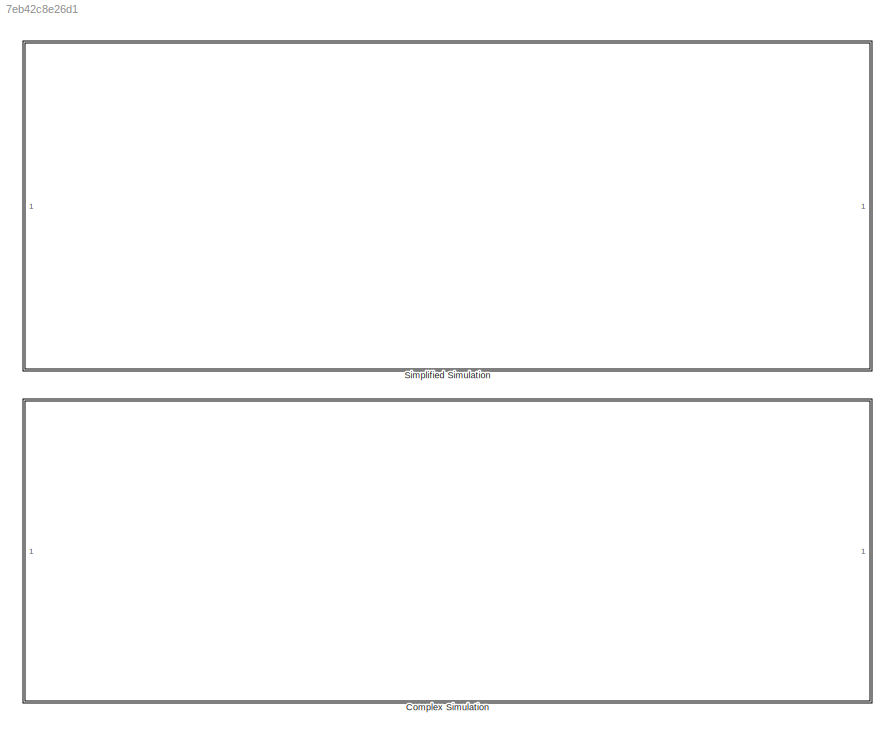
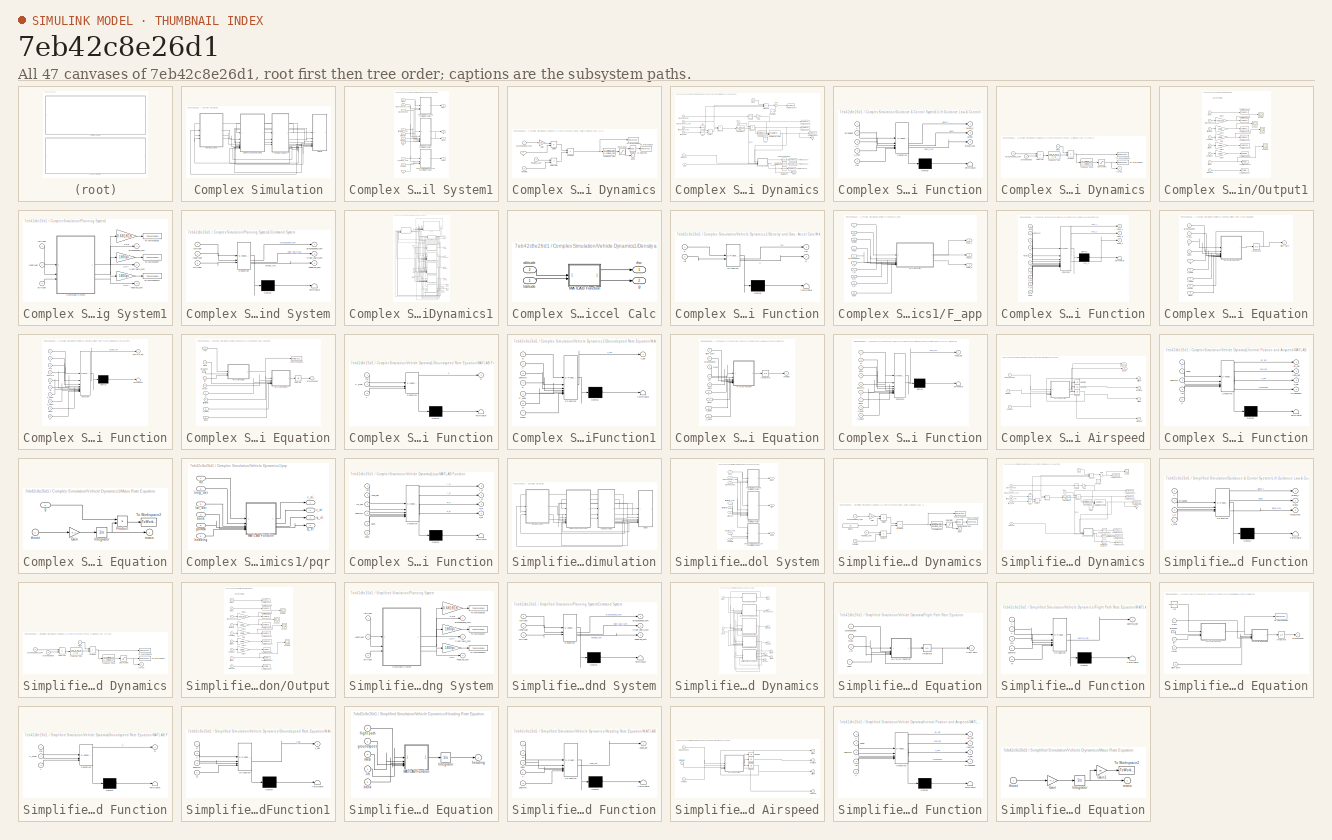
[diagram: thumbnail index - all 47 canvases of the model, root first then tree order]
MODEL slx_7eb42c8e26d1
KIND model
CONFIG AbsTol = 1e-6
CONFIG EnableMultiTasking = off
CONFIG FixedStep = auto
CONFIG MaxStep = auto
CONFIG MinStep = auto
CONFIG RelTol = 1e-3
CONFIG SampleTimeConstraint = Unconstrained
CONFIG SolverName = ode45
CONFIG StartTime = 0.0
CONFIG StopTime = 300
BLOCK [SubSystem] Complex Simulation
BLOCK [SubSystem] Complex Simulation/Guidance & Control System1
BLOCK [SubSystem] Complex Simulation/Guidance & Control System1/Bank Angle Guidance Law & Controller Dynamics
  ShowPortLabels = none
BLOCK [Product] Complex Simulation/Guidance & Control System1/Bank Angle Guidance Law & Controller Dynamics/Divide
  Inputs = */
BLOCK [Gain] Complex Simulation/Guidance & Control System1/Bank Angle Guidance Law & Controller Dynamics/Gain
  Gain = K_mu_p
BLOCK [Product] Complex Simulation/Guidance & Control System1/Bank Angle Guidance Law & Controller Dynamics/Product
BLOCK [Reference] Complex Simulation/Guidance & Control System1/Bank Angle Guidance Law & Controller Dynamics/Radians to Degrees  REF=simulink_extras/Transformations/Radians
to Degrees
  SourceBlock = simulink_extras/Transformations/Radians\nto Degrees
  SourceType = RadiansToDegrees
BLOCK [Saturate] Complex Simulation/Guidance & Control System1/Bank Angle Guidance Law & Controller Dynamics/Saturation
  LowerLimit = -mu_max*pi/180
  UpperLimit = mu_max*pi/180
BLOCK [Sum] Complex Simulation/Guidance & Control System1/Bank Angle Guidance Law & Controller Dynamics/Subtract
  IconShape = rectangular
  Inputs = +-
BLOCK [ToWorkspace] Complex Simulation/Guidance & Control System1/Bank Angle Guidance Law & Controller Dynamics/To Workspace
  VariableName = bank2
BLOCK [ToWorkspace] Complex Simulation/Guidance & Control System1/Bank Angle Guidance Law & Controller Dynamics/To Workspace1
  VariableName = bank_com2
BLOCK [TransferFcn] Complex Simulation/Guidance & Control System1/Bank Angle Guidance Law & Controller Dynamics/Transfer Fcn
  Denominator = [1 omega_mu]
  Numerator = [0 omega_mu]
BLOCK [Outport] Complex Simulation/Guidance & Control System1/Bank Angle Guidance Law & Controller Dynamics/bank
BLOCK [Inport] Complex Simulation/Guidance & Control System1/Bank Angle Guidance Law & Controller Dynamics/g
  Port = 4
BLOCK [Inport] Complex Simulation/Guidance & Control System1/Bank Angle Guidance Law & Controller Dynamics/groundspeed_com
BLOCK [Inport] Complex Simulation/Guidance & Control System1/Bank Angle Guidance Law & Controller Dynamics/heading
  Port = 3
BLOCK [Inport] Complex Simulation/Guidance & Control System1/Bank Angle Guidance Law & Controller Dynamics/heading_com
  Port = 2
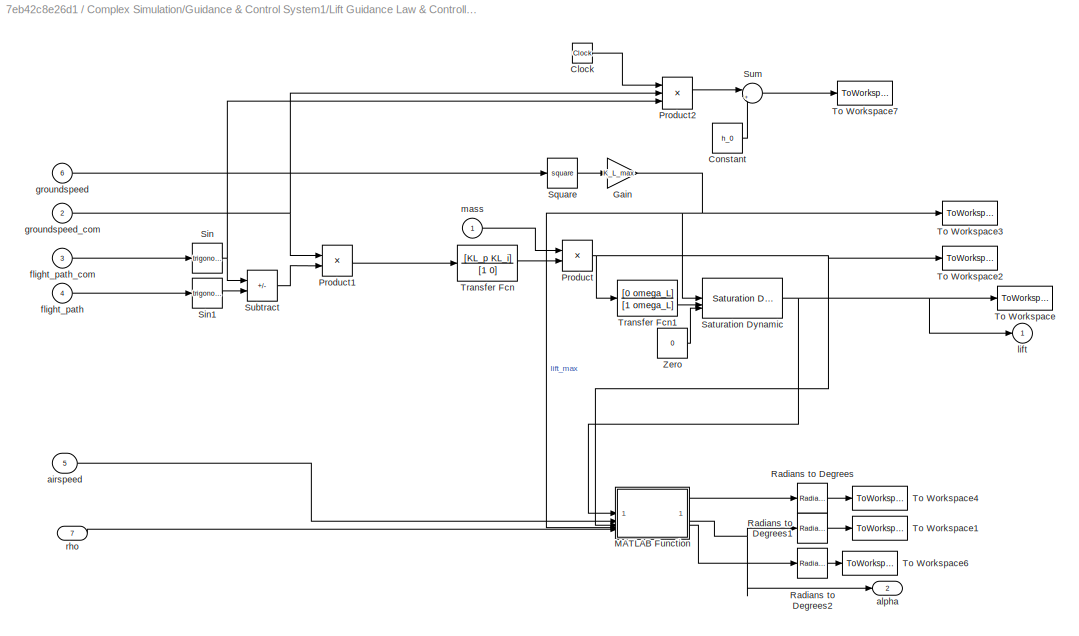
BLOCK [SubSystem] Complex Simulation/Guidance & Control System1/Lift Guidance Law & Controller Dynamics
  ShowPortLabels = none
BLOCK [Clock] Complex Simulation/Guidance & Control System1/Lift Guidance Law & Controller Dynamics/Clock
BLOCK [Constant] Complex Simulation/Guidance & Control System1/Lift Guidance Law & Controller Dynamics/Constant
  Value = h_0
BLOCK [Gain] Complex Simulation/Guidance & Control System1/Lift Guidance Law & Controller Dynamics/Gain
  Gain = K_L_max
BLOCK [SubSystem] Complex Simulation/Guidance & Control System1/Lift Guidance Law & Controller Dynamics/MATLAB Function
  ErrorFcn = Stateflow.Translate.translate
  PermitHierarchicalResolution = ExplicitOnly
  SFBlockType = MATLAB Function
  TreatAsAtomicUnit = on
BLOCK [Demux] Complex Simulation/Guidance & Control System1/Lift Guidance Law & Controller Dynamics/MATLAB Function/ Demux 
  Outputs = 1
BLOCK [S-Function] Complex Simulation/Guidance & Control System1/Lift Guidance Law & Controller Dynamics/MATLAB Function/ SFunction 
  EnableBusSupport = on
  FunctionName = sf_sfun
  PortCounts = [5 4]
  SFcnIsStateOwnerBlock = off
  SFunctionDeploymentMode = off
  Tag = Stateflow S-Function 8
BLOCK [Terminator] Complex Simulation/Guidance & Control System1/Lift Guidance Law & Controller Dynamics/MATLAB Function/ Terminator 
BLOCK [Inport] Complex Simulation/Guidance & Control System1/Lift Guidance Law & Controller Dynamics/MATLAB Function/L
BLOCK [Inport] Complex Simulation/Guidance & Control System1/Lift Guidance Law & Controller Dynamics/MATLAB Function/L_c
  Port = 3
BLOCK [Inport] Complex Simulation/Guidance & Control System1/Lift Guidance Law & Controller Dynamics/MATLAB Function/L_max
  Port = 4
BLOCK [Inport] Complex Simulation/Guidance & Control System1/Lift Guidance Law & Controller Dynamics/MATLAB Function/airspeed
  Port = 2
BLOCK [Outport] Complex Simulation/Guidance & Control System1/Lift Guidance Law & Controller Dynamics/MATLAB Function/alpha
  Port = 2
BLOCK [Outport] Complex Simulation/Guidance & Control System1/Lift Guidance Law & Controller Dynamics/MATLAB Function/alpha_c
BLOCK [Outport] Complex Simulation/Guidance & Control System1/Lift Guidance Law & Controller Dynamics/MATLAB Function/alpha_max
  Port = 3
BLOCK [Inport] Complex Simulation/Guidance & Control System1/Lift Guidance Law & Controller Dynamics/MATLAB Function/rho
  Port = 5
BLOCK [Product] Complex Simulation/Guidance & Control System1/Lift Guidance Law & Controller Dynamics/Product
BLOCK [Product] Complex Simulation/Guidance & Control System1/Lift Guidance Law & Controller Dynamics/Product1
BLOCK [Product] Complex Simulation/Guidance & Control System1/Lift Guidance Law & Controller Dynamics/Product2
  Inputs = 3
BLOCK [Reference] Complex Simulation/Guidance & Control System1/Lift Guidance Law & Controller Dynamics/Radians to Degrees  REF=simulink_extras/Transformations/Radians
to Degrees
  SourceBlock = simulink_extras/Transformations/Radians\nto Degrees
  SourceType = RadiansToDegrees
BLOCK [Reference] Complex Simulation/Guidance & Control System1/Lift Guidance Law & Controller Dynamics/Radians to Degrees1  REF=simulink_extras/Transformations/Radians
to Degrees
  SourceBlock = simulink_extras/Transformations/Radians\nto Degrees
  SourceType = RadiansToDegrees
BLOCK [Reference] Complex Simulation/Guidance & Control System1/Lift Guidance Law & Controller Dynamics/Radians to Degrees2  REF=simulink_extras/Transformations/Radians
to Degrees
  SourceBlock = simulink_extras/Transformations/Radians\nto Degrees
  SourceType = RadiansToDegrees
BLOCK [Reference] Complex Simulation/Guidance & Control System1/Lift Guidance Law & Controller Dynamics/Saturation Dynamic  REF=simulink/Discontinuities/Saturation
Dynamic
  SourceBlock = simulink/Discontinuities/Saturation\nDynamic
  SourceType = Saturation Dynamic
BLOCK [Trigonometry] Complex Simulation/Guidance & Control System1/Lift Guidance Law & Controller Dynamics/Sin
BLOCK [Trigonometry] Complex Simulation/Guidance & Control System1/Lift Guidance Law & Controller Dynamics/Sin1
BLOCK [Math] Complex Simulation/Guidance & Control System1/Lift Guidance Law & Controller Dynamics/Square
  Operator = square
BLOCK [Sum] Complex Simulation/Guidance & Control System1/Lift Guidance Law & Controller Dynamics/Subtract
  IconShape = rectangular
  Inputs = +-
BLOCK [Sum] Complex Simulation/Guidance & Control System1/Lift Guidance Law & Controller Dynamics/Sum
  Inputs = |++
BLOCK [ToWorkspace] Complex Simulation/Guidance & Control System1/Lift Guidance Law & Controller Dynamics/To Workspace
  VariableName = lift2
BLOCK [ToWorkspace] Complex Simulation/Guidance & Control System1/Lift Guidance Law & Controller Dynamics/To Workspace1
  VariableName = alpha2
BLOCK [ToWorkspace] Complex Simulation/Guidance & Control System1/Lift Guidance Law & Controller Dynamics/To Workspace2
  VariableName = lift_com2
BLOCK [ToWorkspace] Complex Simulation/Guidance & Control System1/Lift Guidance Law & Controller Dynamics/To Workspace3
  VariableName = lift_max2
BLOCK [ToWorkspace] Complex Simulation/Guidance & Control System1/Lift Guidance Law & Controller Dynamics/To Workspace4
  VariableName = alpha_com2
BLOCK [ToWorkspace] Complex Simulation/Guidance & Control System1/Lift Guidance Law & Controller Dynamics/To Workspace6
  VariableName = alpha_max2
BLOCK [ToWorkspace] Complex Simulation/Guidance & Control System1/Lift Guidance Law & Controller Dynamics/To Workspace7
  VariableName = altitude_com2
BLOCK [TransferFcn] Complex Simulation/Guidance & Control System1/Lift Guidance Law & Controller Dynamics/Transfer Fcn
  Denominator = [1 0]
  Numerator = [KL_p KL_i]
BLOCK [TransferFcn] Complex Simulation/Guidance & Control System1/Lift Guidance Law & Controller Dynamics/Transfer Fcn1
  Denominator = [1 omega_L]
  Numerator = [0 omega_L]
BLOCK [Constant] Complex Simulation/Guidance & Control System1/Lift Guidance Law & Controller Dynamics/Zero
  OutDataTypeStr = Inherit: Inherit via back propagation
  Value = 0
BLOCK [Inport] Complex Simulation/Guidance & Control System1/Lift Guidance Law & Controller Dynamics/airspeed
  Port = 5
BLOCK [Outport] Complex Simulation/Guidance & Control System1/Lift Guidance Law & Controller Dynamics/alpha
  Port = 2
BLOCK [Inport] Complex Simulation/Guidance & Control System1/Lift Guidance Law & Controller Dynamics/flight_path
  Port = 4
BLOCK [Inport] Complex Simulation/Guidance & Control System1/Lift Guidance Law & Controller Dynamics/flight_path_com
  Port = 3
BLOCK [Inport] Complex Simulation/Guidance & Control System1/Lift Guidance Law & Controller Dynamics/groundspeed
  Port = 6
BLOCK [Inport] Complex Simulation/Guidance & Control System1/Lift Guidance Law & Controller Dynamics/groundspeed_com
  Port = 2
BLOCK [Outport] Complex Simulation/Guidance & Control System1/Lift Guidance Law & Controller Dynamics/lift
BLOCK [Inport] Complex Simulation/Guidance & Control System1/Lift Guidance Law & Controller Dynamics/mass
BLOCK [Inport] Complex Simulation/Guidance & Control System1/Lift Guidance Law & Controller Dynamics/rho
  Port = 7
BLOCK [SubSystem] Complex Simulation/Guidance & Control System1/Thrust Guidance Law & Controller Dynamics
  ShowPortLabels = none
BLOCK [Product] Complex Simulation/Guidance & Control System1/Thrust Guidance Law & Controller Dynamics/Product
BLOCK [Saturate] Complex Simulation/Guidance & Control System1/Thrust Guidance Law & Controller Dynamics/Saturation
  LowerLimit = 0
  UpperLimit = T_max
BLOCK [Sum] Complex Simulation/Guidance & Control System1/Thrust Guidance Law & Controller Dynamics/Subtract
  IconShape = rectangular
  Inputs = +-
BLOCK [ToWorkspace] Complex Simulation/Guidance & Control System1/Thrust Guidance Law & Controller Dynamics/To Workspace
  VariableName = thrust2
BLOCK [ToWorkspace] Complex Simulation/Guidance & Control System1/Thrust Guidance Law & Controller Dynamics/To Workspace1
  VariableName = thrust_com2
BLOCK [TransferFcn] Complex Simulation/Guidance & Control System1/Thrust Guidance Law & Controller Dynamics/Transfer Fcn
  Denominator = [1 0]
  Numerator = [KT_p KT_i]
BLOCK [TransferFcn] Complex Simulation/Guidance & Control System1/Thrust Guidance Law & Controller Dynamics/Transfer Fcn1
  Denominator = [1 omega_t]
  Numerator = [0 omega_t]
BLOCK [Inport] Complex Simulation/Guidance & Control System1/Thrust Guidance Law & Controller Dynamics/groundspeed
  Port = 3
BLOCK [Inport] Complex Simulation/Guidance & Control System1/Thrust Guidance Law & Controller Dynamics/groundspeed_com
  Port = 2
BLOCK [Inport] Complex Simulation/Guidance & Control System1/Thrust Guidance Law & Controller Dynamics/mass
BLOCK [Outport] Complex Simulation/Guidance & Control System1/Thrust Guidance Law & Controller Dynamics/thrust
BLOCK [Inport] Complex Simulation/Guidance & Control System1/airspeed
  Port = 6
BLOCK [Outport] Complex Simulation/Guidance & Control System1/alpha
  Port = 4
BLOCK [Outport] Complex Simulation/Guidance & Control System1/bank
  Port = 3
BLOCK [Inport] Complex Simulation/Guidance & Control System1/flight-path
  Port = 5
BLOCK [Inport] Complex Simulation/Guidance & Control System1/flight-path_com
  Port = 4
BLOCK [Inport] Complex Simulation/Guidance & Control System1/g
  Port = 9
BLOCK [Inport] Complex Simulation/Guidance & Control System1/groundspeed
  Port = 3
BLOCK [Inport] Complex Simulation/Guidance & Control System1/groundspeed_com
  Port = 2
BLOCK [Inport] Complex Simulation/Guidance & Control System1/heading
  Port = 8
BLOCK [Inport] Complex Simulation/Guidance & Control System1/heading_com
  Port = 7
BLOCK [Outport] Complex Simulation/Guidance & Control System1/lift
  Port = 2
BLOCK [Inport] Complex Simulation/Guidance & Control System1/mass
BLOCK [Inport] Complex Simulation/Guidance & Control System1/rho
  Port = 10
BLOCK [Outport] Complex Simulation/Guidance & Control System1/thrust
BLOCK [SubSystem] Complex Simulation/Output1
BLOCK [Gain] Complex Simulation/Output1/Gain
  Gain = 180/pi
BLOCK [Gain] Complex Simulation/Output1/Gain1
  Gain = 180/pi
BLOCK [Gain] Complex Simulation/Output1/Gain2
  Gain = 0.681818
BLOCK [Gain] Complex Simulation/Output1/Gain3
  Gain = 180/pi
BLOCK [Gain] Complex Simulation/Output1/Gain4
  Gain = 180/pi
BLOCK [Scope] Complex Simulation/Output1/Scope
  Floating = off
  NumInputPorts = 1
  ScopeSpecificationString = Simulink.scopes.TimeScopeBlockCfg('CurrentConfiguration', extmgr.ConfigurationSet(extmgr.Configuration('Core','General UI',true),extmgr.Configuration('Core','Source UI',true),extmgr.Configuration('Sources','WiredSimulink',true),extmgr.Configuration('Visuals','Time Domain',true,'SerializedDisplays',{struct('MinYLimReal','365.80845','MaxYLimReal','464.79671','YLabelReal','','MinYLimMag','365.80845',...<+1428ch>
BLOCK [Scope] Complex Simulation/Output1/Scope1
  Floating = off
  NumInputPorts = 1
  ScopeSpecificationString = Simulink.scopes.TimeScopeBlockCfg('CurrentConfiguration', extmgr.ConfigurationSet(extmgr.Configuration('Core','General UI',true),extmgr.Configuration('Core','Source UI',true),extmgr.Configuration('Sources','WiredSimulink',true,'DataLoggingVariableName','ScopeData1'),extmgr.Configuration('Visuals','Time Domain',true,'SerializedDisplays',{struct('MinYLimReal','-1.875','MaxYLimReal','16.875','YLabelR...<+1472ch>
BLOCK [Scope] Complex Simulation/Output1/Scope2
  Floating = off
  NumInputPorts = 1
  ScopeSpecificationString = Simulink.scopes.TimeScopeBlockCfg('CurrentConfiguration', extmgr.ConfigurationSet(extmgr.Configuration('Core','General UI',true),extmgr.Configuration('Core','Source UI',true),extmgr.Configuration('Sources','WiredSimulink',true,'DataLoggingVariableName','ScopeData2'),extmgr.Configuration('Visuals','Time Domain',true,'SerializedDisplays',{struct('MinYLimReal','-0.90331','MaxYLimReal','5.62845','YLab...<+1453ch>
BLOCK [Scope] Complex Simulation/Output1/Scope3
  Floating = off
  NumInputPorts = 1
  ScopeSpecificationString = Simulink.scopes.TimeScopeBlockCfg('CurrentConfiguration', extmgr.ConfigurationSet(extmgr.Configuration('Core','General UI',true),extmgr.Configuration('Core','Source UI',true),extmgr.Configuration('Sources','WiredSimulink',true,'DataLoggingVariableName','ScopeData3'),extmgr.Configuration('Visuals','Time Domain',true,'SerializedDisplays',{struct('MinYLimReal','18034.00595','MaxYLimReal','37679.77313...<+1486ch>
BLOCK [ToWorkspace] Complex Simulation/Output1/To Workspace1
  VariableName = groundspeed2
BLOCK [ToWorkspace] Complex Simulation/Output1/To Workspace2
  VariableName = flight_path2
BLOCK [ToWorkspace] Complex Simulation/Output1/To Workspace3
  VariableName = heading2
BLOCK [ToWorkspace] Complex Simulation/Output1/To Workspace4
  VariableName = latitude2
BLOCK [ToWorkspace] Complex Simulation/Output1/To Workspace5
  VariableName = longitude2
BLOCK [ToWorkspace] Complex Simulation/Output1/To Workspace6
  VariableName = altitude2
BLOCK [ToWorkspace] Complex Simulation/Output1/To Workspace7
  VariableName = airspeed2
BLOCK [ToWorkspace] Complex Simulation/Output1/To Workspace8
  VariableName = mass2
BLOCK [Inport] Complex Simulation/Output1/airspeed
  Port = 8
BLOCK [Inport] Complex Simulation/Output1/altitude
  Port = 7
BLOCK [Inport] Complex Simulation/Output1/flight-path
  Port = 3
BLOCK [Inport] Complex Simulation/Output1/groundspeed
  Port = 2
BLOCK [Inport] Complex Simulation/Output1/heading
  Port = 4
BLOCK [Inport] Complex Simulation/Output1/latitude
  Port = 5
BLOCK [Inport] Complex Simulation/Output1/longitude
  Port = 6
BLOCK [Inport] Complex Simulation/Output1/mass
BLOCK [SubSystem] Complex Simulation/Planning System1
BLOCK [Gain] Complex Simulation/Planning System1/CD1
  Gain = 180/pi
  SaturateOnIntegerOverflow = on
BLOCK [Gain] Complex Simulation/Planning System1/CD7
  Gain = 180/pi
  SaturateOnIntegerOverflow = on
BLOCK [Gain] Complex Simulation/Planning System1/CD8
  Gain = 0.681818
  SaturateOnIntegerOverflow = on
BLOCK [SubSystem] Complex Simulation/Planning System1/Command System
  ErrorFcn = Stateflow.Translate.translate
  PermitHierarchicalResolution = ExplicitOnly
  SFBlockType = MATLAB Function
  TreatAsAtomicUnit = on
BLOCK [Demux] Complex Simulation/Planning System1/Command System/ Demux 
  Outputs = 1
BLOCK [S-Function] Complex Simulation/Planning System1/Command System/ SFunction 
  EnableBusSupport = on
  FunctionName = sf_sfun
  PortCounts = [3 4]
  SFcnIsStateOwnerBlock = off
  SFunctionDeploymentMode = off
  Tag = Stateflow S-Function 9
BLOCK [Terminator] Complex Simulation/Planning System1/Command System/ Terminator 
BLOCK [Inport] Complex Simulation/Planning System1/Command System/altitude
  Port = 3
BLOCK [Outport] Complex Simulation/Planning System1/Command System/flight_path_com
  Port = 2
BLOCK [Outport] Complex Simulation/Planning System1/Command System/groundspeed_com
BLOCK [Outport] Complex Simulation/Planning System1/Command System/heading_com
  Port = 3
BLOCK [Inport] Complex Simulation/Planning System1/Command System/latitude
BLOCK [Inport] Complex Simulation/Planning System1/Command System/longitude
  Port = 2
BLOCK [ToWorkspace] Complex Simulation/Planning System1/To Workspace10
  VariableName = heading_com2
BLOCK [ToWorkspace] Complex Simulation/Planning System1/To Workspace5
  VariableName = groundspeed_com2
BLOCK [ToWorkspace] Complex Simulation/Planning System1/To Workspace7
  VariableName = flight_path_com2
BLOCK [Inport] Complex Simulation/Planning System1/altitude
  Port = 3
BLOCK [Outport] Complex Simulation/Planning System1/flight-path_com
  Port = 2
BLOCK [Outport] Complex Simulation/Planning System1/groundspeed_com
BLOCK [Outport] Complex Simulation/Planning System1/heading_com
  Port = 3
BLOCK [Inport] Complex Simulation/Planning System1/latitude
BLOCK [Inport] Complex Simulation/Planning System1/longitude
  Port = 2
BLOCK [SubSystem] Complex Simulation/Vehicle Dynamics1
BLOCK [Outport] Complex Simulation/Vehicle Dynamics1/ flight-path 
  Port = 3
BLOCK [Outport] Complex Simulation/Vehicle Dynamics1/ groundspeed 
  Port = 2
BLOCK [Outport] Complex Simulation/Vehicle Dynamics1/ heading 
  Port = 4
BLOCK [Outport] Complex Simulation/Vehicle Dynamics1/ mass
BLOCK [SubSystem] Complex Simulation/Vehicle Dynamics1/Density and Grav. Accel Calc
BLOCK [SubSystem] Complex Simulation/Vehicle Dynamics1/Density and Grav. Accel Calc/MATLAB Function
  ErrorFcn = Stateflow.Translate.translate
  PermitHierarchicalResolution = ExplicitOnly
  SFBlockType = MATLAB Function
  TreatAsAtomicUnit = on
BLOCK [Demux] Complex Simulation/Vehicle Dynamics1/Density and Grav. Accel Calc/MATLAB Function/ Demux 
  Outputs = 1
BLOCK [S-Function] Complex Simulation/Vehicle Dynamics1/Density and Grav. Accel Calc/MATLAB Function/ SFunction 
  EnableBusSupport = on
  FunctionName = sf_sfun
  PortCounts = [2 3]
  SFcnIsStateOwnerBlock = off
  SFunctionDeploymentMode = off
  Tag = Stateflow S-Function 15
BLOCK [Terminator] Complex Simulation/Vehicle Dynamics1/Density and Grav. Accel Calc/MATLAB Function/ Terminator 
BLOCK [Outport] Complex Simulation/Vehicle Dynamics1/Density and Grav. Accel Calc/MATLAB Function/g
  Port = 2
BLOCK [Inport] Complex Simulation/Vehicle Dynamics1/Density and Grav. Accel Calc/MATLAB Function/h
BLOCK [Inport] Complex Simulation/Vehicle Dynamics1/Density and Grav. Accel Calc/MATLAB Function/lat
  Port = 2
BLOCK [Outport] Complex Simulation/Vehicle Dynamics1/Density and Grav. Accel Calc/MATLAB Function/rho
BLOCK [Inport] Complex Simulation/Vehicle Dynamics1/Density and Grav. Accel Calc/altitude
  Port = 2
BLOCK [Outport] Complex Simulation/Vehicle Dynamics1/Density and Grav. Accel Calc/g
  Port = 2
BLOCK [Inport] Complex Simulation/Vehicle Dynamics1/Density and Grav. Accel Calc/latitude
BLOCK [Outport] Complex Simulation/Vehicle Dynamics1/Density and Grav. Accel Calc/rho
BLOCK [SubSystem] Complex Simulation/Vehicle Dynamics1/F_app
BLOCK [Outport] Complex Simulation/Vehicle Dynamics1/F_app/Fapp_1
BLOCK [Outport] Complex Simulation/Vehicle Dynamics1/F_app/Fapp_2
  Port = 2
BLOCK [Outport] Complex Simulation/Vehicle Dynamics1/F_app/Fapp_3
  Port = 3
BLOCK [SubSystem] Complex Simulation/Vehicle Dynamics1/F_app/MATLAB Function
  ErrorFcn = Stateflow.Translate.translate
  PermitHierarchicalResolution = ExplicitOnly
  SFBlockType = MATLAB Function
  TreatAsAtomicUnit = on
BLOCK [Demux] Complex Simulation/Vehicle Dynamics1/F_app/MATLAB Function/ Demux 
  Outputs = 1
BLOCK [S-Function] Complex Simulation/Vehicle Dynamics1/F_app/MATLAB Function/ SFunction 
  EnableBusSupport = on
  FunctionName = sf_sfun
  PortCounts = [10 4]
  SFcnIsStateOwnerBlock = off
  SFunctionDeploymentMode = off
  Tag = Stateflow S-Function 17
BLOCK [Terminator] Complex Simulation/Vehicle Dynamics1/F_app/MATLAB Function/ Terminator 
BLOCK [Outport] Complex Simulation/Vehicle Dynamics1/F_app/MATLAB Function/Fapp_1
BLOCK [Outport] Complex Simulation/Vehicle Dynamics1/F_app/MATLAB Function/Fapp_2
  Port = 2
BLOCK [Outport] Complex Simulation/Vehicle Dynamics1/F_app/MATLAB Function/Fapp_3
  Port = 3
BLOCK [Inport] Complex Simulation/Vehicle Dynamics1/F_app/MATLAB Function/bank
  Port = 10
BLOCK [Inport] Complex Simulation/Vehicle Dynamics1/F_app/MATLAB Function/gamma
  Port = 2
BLOCK [Inport] Complex Simulation/Vehicle Dynamics1/F_app/MATLAB Function/h
  Port = 3
BLOCK [Inport] Complex Simulation/Vehicle Dynamics1/F_app/MATLAB Function/head
  Port = 5
BLOCK [Inport] Complex Simulation/Vehicle Dynamics1/F_app/MATLAB Function/long
BLOCK [Inport] Complex Simulation/Vehicle Dynamics1/F_app/MATLAB Function/q_ei
  Port = 8
BLOCK [Inport] Complex Simulation/Vehicle Dynamics1/F_app/MATLAB Function/q_ni
  Port = 9
BLOCK [Inport] Complex Simulation/Vehicle Dynamics1/F_app/MATLAB Function/r_ei
  Port = 7
BLOCK [Inport] Complex Simulation/Vehicle Dynamics1/F_app/MATLAB Function/r_ni
  Port = 6
BLOCK [Inport] Complex Simulation/Vehicle Dynamics1/F_app/MATLAB Function/v
  Port = 4
BLOCK [Inport] Complex Simulation/Vehicle Dynamics1/F_app/bank
  Port = 10
BLOCK [Inport] Complex Simulation/Vehicle Dynamics1/F_app/gamma
  Port = 3
BLOCK [Inport] Complex Simulation/Vehicle Dynamics1/F_app/groundspeed
  Port = 5
BLOCK [Inport] Complex Simulation/Vehicle Dynamics1/F_app/h
BLOCK [Inport] Complex Simulation/Vehicle Dynamics1/F_app/head
  Port = 4
BLOCK [Inport] Complex Simulation/Vehicle Dynamics1/F_app/long
  Port = 2
BLOCK [Inport] Complex Simulation/Vehicle Dynamics1/F_app/q_ei
  Port = 9
BLOCK [Inport] Complex Simulation/Vehicle Dynamics1/F_app/q_ni
  Port = 8
BLOCK [Inport] Complex Simulation/Vehicle Dynamics1/F_app/r_ei
  Port = 7
BLOCK [Inport] Complex Simulation/Vehicle Dynamics1/F_app/r_ni
  Port = 6
BLOCK [SubSystem] Complex Simulation/Vehicle Dynamics1/Flight Path Rate Equation
BLOCK [Inport] Complex Simulation/Vehicle Dynamics1/Flight Path Rate Equation/F_app2
  Port = 6
BLOCK [Inport] Complex Simulation/Vehicle Dynamics1/Flight Path Rate Equation/F_app3
  Port = 7
BLOCK [Integrator] Complex Simulation/Vehicle Dynamics1/Flight Path Rate Equation/Integrator
  InitialCondition = gamma_0
BLOCK [SubSystem] Complex Simulation/Vehicle Dynamics1/Flight Path Rate Equation/MATLAB Function
  ErrorFcn = Stateflow.Translate.translate
  PermitHierarchicalResolution = ExplicitOnly
  SFBlockType = MATLAB Function
  TreatAsAtomicUnit = on
BLOCK [Demux] Complex Simulation/Vehicle Dynamics1/Flight Path Rate Equation/MATLAB Function/ Demux 
  Outputs = 1
BLOCK [S-Function] Complex Simulation/Vehicle Dynamics1/Flight Path Rate Equation/MATLAB Function/ SFunction 
  EnableBusSupport = on
  FunctionName = sf_sfun
  PortCounts = [10 2]
  SFcnIsStateOwnerBlock = off
  SFunctionDeploymentMode = off
  Tag = Stateflow S-Function 10
BLOCK [Terminator] Complex Simulation/Vehicle Dynamics1/Flight Path Rate Equation/MATLAB Function/ Terminator 
BLOCK [Inport] Complex Simulation/Vehicle Dynamics1/Flight Path Rate Equation/MATLAB Function/F_app2
  Port = 7
BLOCK [Inport] Complex Simulation/Vehicle Dynamics1/Flight Path Rate Equation/MATLAB Function/F_app3
  Port = 8
BLOCK [Inport] Complex Simulation/Vehicle Dynamics1/Flight Path Rate Equation/MATLAB Function/L
BLOCK [Inport] Complex Simulation/Vehicle Dynamics1/Flight Path Rate Equation/MATLAB Function/T
  Port = 10
BLOCK [Inport] Complex Simulation/Vehicle Dynamics1/Flight Path Rate Equation/MATLAB Function/alpha
  Port = 9
BLOCK [Inport] Complex Simulation/Vehicle Dynamics1/Flight Path Rate Equation/MATLAB Function/g
  Port = 6
BLOCK [Inport] Complex Simulation/Vehicle Dynamics1/Flight Path Rate Equation/MATLAB Function/gamma
  Port = 4
BLOCK [Outport] Complex Simulation/Vehicle Dynamics1/Flight Path Rate Equation/MATLAB Function/gamma_der
BLOCK [Inport] Complex Simulation/Vehicle Dynamics1/Flight Path Rate Equation/MATLAB Function/m
  Port = 5
BLOCK [Inport] Complex Simulation/Vehicle Dynamics1/Flight Path Rate Equation/MATLAB Function/mu
  Port = 3
BLOCK [Inport] Complex Simulation/Vehicle Dynamics1/Flight Path Rate Equation/MATLAB Function/v
  Port = 2
BLOCK [Inport] Complex Simulation/Vehicle Dynamics1/Flight Path Rate Equation/alpha
  Port = 9
BLOCK [Inport] Complex Simulation/Vehicle Dynamics1/Flight Path Rate Equation/bank
  Port = 5
BLOCK [Outport] Complex Simulation/Vehicle Dynamics1/Flight Path Rate Equation/flight path
BLOCK [Inport] Complex Simulation/Vehicle Dynamics1/Flight Path Rate Equation/g
  Port = 2
BLOCK [Inport] Complex Simulation/Vehicle Dynamics1/Flight Path Rate Equation/groundspeed
BLOCK [Inport] Complex Simulation/Vehicle Dynamics1/Flight Path Rate Equation/lift 
  Port = 4
BLOCK [Inport] Complex Simulation/Vehicle Dynamics1/Flight Path Rate Equation/mass
  Port = 3
BLOCK [Inport] Complex Simulation/Vehicle Dynamics1/Flight Path Rate Equation/thrust
  Port = 8
BLOCK [SubSystem] Complex Simulation/Vehicle Dynamics1/Groundspeed Rate Equation
BLOCK [Inport] Complex Simulation/Vehicle Dynamics1/Groundspeed Rate Equation/F_app1
  Port = 8
BLOCK [Integrator] Complex Simulation/Vehicle Dynamics1/Groundspeed Rate Equation/Integrator
  InitialCondition = v_bn_0
BLOCK [SubSystem] Complex Simulation/Vehicle Dynamics1/Groundspeed Rate Equation/MATLAB Function
  ErrorFcn = Stateflow.Translate.translate
  PermitHierarchicalResolution = ExplicitOnly
  SFBlockType = MATLAB Function
  TreatAsAtomicUnit = on
BLOCK [Demux] Complex Simulation/Vehicle Dynamics1/Groundspeed Rate Equation/MATLAB Function/ Demux 
  Outputs = 1
BLOCK [S-Function] Complex Simulation/Vehicle Dynamics1/Groundspeed Rate Equation/MATLAB Function/ SFunction 
  EnableBusSupport = on
  FunctionName = sf_sfun
  PortCounts = [3 2]
  SFcnIsStateOwnerBlock = off
  SFunctionDeploymentMode = off
  Tag = Stateflow S-Function 11
BLOCK [Terminator] Complex Simulation/Vehicle Dynamics1/Groundspeed Rate Equation/MATLAB Function/ Terminator 
BLOCK [Outport] Complex Simulation/Vehicle Dynamics1/Groundspeed Rate Equation/MATLAB Function/D
BLOCK [Inport] Complex Simulation/Vehicle Dynamics1/Groundspeed Rate Equation/MATLAB Function/L
  Port = 3
BLOCK [Inport] Complex Simulation/Vehicle Dynamics1/Groundspeed Rate Equation/MATLAB Function/V_mag
  Port = 2
BLOCK [Inport] Complex Simulation/Vehicle Dynamics1/Groundspeed Rate Equation/MATLAB Function/rho
BLOCK [SubSystem] Complex Simulation/Vehicle Dynamics1/Groundspeed Rate Equation/MATLAB Function1
  ErrorFcn = Stateflow.Translate.translate
  PermitHierarchicalResolution = ExplicitOnly
  SFBlockType = MATLAB Function
  TreatAsAtomicUnit = on
BLOCK [Demux] Complex Simulation/Vehicle Dynamics1/Groundspeed Rate Equation/MATLAB Function1/ Demux 
  Outputs = 1
BLOCK [S-Function] Complex Simulation/Vehicle Dynamics1/Groundspeed Rate Equation/MATLAB Function1/ SFunction 
  EnableBusSupport = on
  FunctionName = sf_sfun
  PortCounts = [7 2]
  SFcnIsStateOwnerBlock = off
  SFunctionDeploymentMode = off
  Tag = Stateflow S-Function 12
BLOCK [Terminator] Complex Simulation/Vehicle Dynamics1/Groundspeed Rate Equation/MATLAB Function1/ Terminator 
BLOCK [Inport] Complex Simulation/Vehicle Dynamics1/Groundspeed Rate Equation/MATLAB Function1/D
BLOCK [Inport] Complex Simulation/Vehicle Dynamics1/Groundspeed Rate Equation/MATLAB Function1/F_app1
  Port = 5
BLOCK [Inport] Complex Simulation/Vehicle Dynamics1/Groundspeed Rate Equation/MATLAB Function1/T
  Port = 2
BLOCK [Inport] Complex Simulation/Vehicle Dynamics1/Groundspeed Rate Equation/MATLAB Function1/alpha
  Port = 7
BLOCK [Inport] Complex Simulation/Vehicle Dynamics1/Groundspeed Rate Equation/MATLAB Function1/g
  Port = 4
BLOCK [Inport] Complex Simulation/Vehicle Dynamics1/Groundspeed Rate Equation/MATLAB Function1/gamma
  Port = 3
BLOCK [Inport] Complex Simulation/Vehicle Dynamics1/Groundspeed Rate Equation/MATLAB Function1/m
  Port = 6
BLOCK [Outport] Complex Simulation/Vehicle Dynamics1/Groundspeed Rate Equation/MATLAB Function1/v_der
BLOCK [ToWorkspace] Complex Simulation/Vehicle Dynamics1/Groundspeed Rate Equation/To Workspace3
  VariableName = drag2
BLOCK [Inport] Complex Simulation/Vehicle Dynamics1/Groundspeed Rate Equation/airspeed
  Port = 7
BLOCK [Inport] Complex Simulation/Vehicle Dynamics1/Groundspeed Rate Equation/alpha
  Port = 9
BLOCK [Inport] Complex Simulation/Vehicle Dynamics1/Groundspeed Rate Equation/flight path
  Port = 6
BLOCK [Inport] Complex Simulation/Vehicle Dynamics1/Groundspeed Rate Equation/g
  Port = 2
BLOCK [Outport] Complex Simulation/Vehicle Dynamics1/Groundspeed Rate Equation/groundspeed
BLOCK [Inport] Complex Simulation/Vehicle Dynamics1/Groundspeed Rate Equation/lift
  Port = 4
BLOCK [Inport] Complex Simulation/Vehicle Dynamics1/Groundspeed Rate Equation/mass
  Port = 3
BLOCK [Inport] Complex Simulation/Vehicle Dynamics1/Groundspeed Rate Equation/rho
BLOCK [Inport] Complex Simulation/Vehicle Dynamics1/Groundspeed Rate Equation/thrust
  Port = 5
BLOCK [SubSystem] Complex Simulation/Vehicle Dynamics1/Heading Rate Equation
BLOCK [Inport] Complex Simulation/Vehicle Dynamics1/Heading Rate Equation/F_app2
  Port = 8
BLOCK [Inport] Complex Simulation/Vehicle Dynamics1/Heading Rate Equation/F_app3
  Port = 9
BLOCK [Integrator] Complex Simulation/Vehicle Dynamics1/Heading Rate Equation/Integrator
  InitialCondition = sigma_0
BLOCK [SubSystem] Complex Simulation/Vehicle Dynamics1/Heading Rate Equation/MATLAB Function
  ErrorFcn = Stateflow.Translate.translate
  PermitHierarchicalResolution = ExplicitOnly
  SFBlockType = MATLAB Function
  TreatAsAtomicUnit = on
BLOCK [Demux] Complex Simulation/Vehicle Dynamics1/Heading Rate Equation/MATLAB Function/ Demux 
  Outputs = 1
BLOCK [S-Function] Complex Simulation/Vehicle Dynamics1/Heading Rate Equation/MATLAB Function/ SFunction 
  EnableBusSupport = on
  FunctionName = sf_sfun
  PortCounts = [9 2]
  SFcnIsStateOwnerBlock = off
  SFunctionDeploymentMode = off
  Tag = Stateflow S-Function 13
BLOCK [Terminator] Complex Simulation/Vehicle Dynamics1/Heading Rate Equation/MATLAB Function/ Terminator 
BLOCK [Inport] Complex Simulation/Vehicle Dynamics1/Heading Rate Equation/MATLAB Function/F_app2
  Port = 8
BLOCK [Inport] Complex Simulation/Vehicle Dynamics1/Heading Rate Equation/MATLAB Function/F_app3
  Port = 9
BLOCK [Inport] Complex Simulation/Vehicle Dynamics1/Heading Rate Equation/MATLAB Function/L
BLOCK [Inport] Complex Simulation/Vehicle Dynamics1/Heading Rate Equation/MATLAB Function/T
  Port = 6
BLOCK [Inport] Complex Simulation/Vehicle Dynamics1/Heading Rate Equation/MATLAB Function/alpha
  Port = 7
BLOCK [Inport] Complex Simulation/Vehicle Dynamics1/Heading Rate Equation/MATLAB Function/bank
  Port = 3
BLOCK [Inport] Complex Simulation/Vehicle Dynamics1/Heading Rate Equation/MATLAB Function/gamma
  Port = 5
BLOCK [Outport] Complex Simulation/Vehicle Dynamics1/Heading Rate Equation/MATLAB Function/head_der
BLOCK [Inport] Complex Simulation/Vehicle Dynamics1/Heading Rate Equation/MATLAB Function/m
  Port = 2
BLOCK [Inport] Complex Simulation/Vehicle Dynamics1/Heading Rate Equation/MATLAB Function/v
  Port = 4
BLOCK [Inport] Complex Simulation/Vehicle Dynamics1/Heading Rate Equation/T
  Port = 6
BLOCK [Inport] Complex Simulation/Vehicle Dynamics1/Heading Rate Equation/alpha
  Port = 7
BLOCK [Inport] Complex Simulation/Vehicle Dynamics1/Heading Rate Equation/bank
  Port = 5
BLOCK [Inport] Complex Simulation/Vehicle Dynamics1/Heading Rate Equation/flight path
BLOCK [Inport] Complex Simulation/Vehicle Dynamics1/Heading Rate Equation/groundspeed
  Port = 2
BLOCK [Outport] Complex Simulation/Vehicle Dynamics1/Heading Rate Equation/heading
BLOCK [Inport] Complex Simulation/Vehicle Dynamics1/Heading Rate Equation/lift 
  Port = 4
BLOCK [Inport] Complex Simulation/Vehicle Dynamics1/Heading Rate Equation/mass
  Port = 3
BLOCK [SubSystem] Complex Simulation/Vehicle Dynamics1/Inertial Position and Airspeed
BLOCK [Integrator] Complex Simulation/Vehicle Dynamics1/Inertial Position and Airspeed/Integrator
  InitialCondition = lat_0
BLOCK [Integrator] Complex Simulation/Vehicle Dynamics1/Inertial Position and Airspeed/Integrator1
  InitialCondition = long_0
BLOCK [Integrator] Complex Simulation/Vehicle Dynamics1/Inertial Position and Airspeed/Integrator2
  InitialCondition = h_0
BLOCK [SubSystem] Complex Simulation/Vehicle Dynamics1/Inertial Position and Airspeed/MATLAB Function
  ErrorFcn = Stateflow.Translate.translate
  PermitHierarchicalResolution = ExplicitOnly
  SFBlockType = MATLAB Function
  TreatAsAtomicUnit = on
BLOCK [Demux] Complex Simulation/Vehicle Dynamics1/Inertial Position and Airspeed/MATLAB Function/ Demux 
  Outputs = 1
BLOCK [S-Function] Complex Simulation/Vehicle Dynamics1/Inertial Position and Airspeed/MATLAB Function/ SFunction 
  EnableBusSupport = on
  FunctionName = sf_sfun
  PortCounts = [5 5]
  SFcnIsStateOwnerBlock = off
  SFunctionDeploymentMode = off
  Tag = Stateflow S-Function 14
BLOCK [Terminator] Complex Simulation/Vehicle Dynamics1/Inertial Position and Airspeed/MATLAB Function/ Terminator 
BLOCK [Inport] Complex Simulation/Vehicle Dynamics1/Inertial Position and Airspeed/MATLAB Function/gamma
  Port = 3
BLOCK [Inport] Complex Simulation/Vehicle Dynamics1/Inertial Position and Airspeed/MATLAB Function/h
  Port = 5
BLOCK [Outport] Complex Simulation/Vehicle Dynamics1/Inertial Position and Airspeed/MATLAB Function/h_der
  Port = 3
BLOCK [Inport] Complex Simulation/Vehicle Dynamics1/Inertial Position and Airspeed/MATLAB Function/head
  Port = 2
BLOCK [Inport] Complex Simulation/Vehicle Dynamics1/Inertial Position and Airspeed/MATLAB Function/lat
  Port = 4
BLOCK [Outport] Complex Simulation/Vehicle Dynamics1/Inertial Position and Airspeed/MATLAB Function/lat_der
BLOCK [Outport] Complex Simulation/Vehicle Dynamics1/Inertial Position and Airspeed/MATLAB Function/long_der
  Port = 2
BLOCK [Inport] Complex Simulation/Vehicle Dynamics1/Inertial Position and Airspeed/MATLAB Function/v
BLOCK [Outport] Complex Simulation/Vehicle Dynamics1/Inertial Position and Airspeed/MATLAB Function/windspeed
  Port = 4
BLOCK [Outport] Complex Simulation/Vehicle Dynamics1/Inertial Position and Airspeed/airspeed
  Port = 4
BLOCK [Outport] Complex Simulation/Vehicle Dynamics1/Inertial Position and Airspeed/altitude
  Port = 3
BLOCK [Inport] Complex Simulation/Vehicle Dynamics1/Inertial Position and Airspeed/flight path 
  Port = 2
BLOCK [Inport] Complex Simulation/Vehicle Dynamics1/Inertial Position and Airspeed/groundspeed
BLOCK [Inport] Complex Simulation/Vehicle Dynamics1/Inertial Position and Airspeed/heading
  Port = 3
BLOCK [Outport] Complex Simulation/Vehicle Dynamics1/Inertial Position and Airspeed/lat_der
  Port = 6
BLOCK [Outport] Complex Simulation/Vehicle Dynamics1/Inertial Position and Airspeed/latitude
BLOCK [Outport] Complex Simulation/Vehicle Dynamics1/Inertial Position and Airspeed/long_der
  Port = 5
BLOCK [Outport] Complex Simulation/Vehicle Dynamics1/Inertial Position and Airspeed/longitude
  Port = 2
BLOCK [SubSystem] Complex Simulation/Vehicle Dynamics1/Mass Rate Equation
BLOCK [Gain] Complex Simulation/Vehicle Dynamics1/Mass Rate Equation/Gain
  Gain = -K_f
BLOCK [Integrator] Complex Simulation/Vehicle Dynamics1/Mass Rate Equation/Integrator
  InitialCondition = weight_0/g0
BLOCK [Product] Complex Simulation/Vehicle Dynamics1/Mass Rate Equation/Product
BLOCK [ToWorkspace] Complex Simulation/Vehicle Dynamics1/Mass Rate Equation/To Workspace2
  VariableName = weight2
BLOCK [Inport] Complex Simulation/Vehicle Dynamics1/Mass Rate Equation/g
  Port = 2
BLOCK [Outport] Complex Simulation/Vehicle Dynamics1/Mass Rate Equation/mass 
BLOCK [Inport] Complex Simulation/Vehicle Dynamics1/Mass Rate Equation/thrust
BLOCK [Outport] Complex Simulation/Vehicle Dynamics1/airspeed
  Port = 8
BLOCK [Inport] Complex Simulation/Vehicle Dynamics1/alpha
  Port = 4
BLOCK [Outport] Complex Simulation/Vehicle Dynamics1/altitude
  Port = 7
BLOCK [Inport] Complex Simulation/Vehicle Dynamics1/bank
  Port = 3
BLOCK [Outport] Complex Simulation/Vehicle Dynamics1/g
  Port = 9
BLOCK [Outport] Complex Simulation/Vehicle Dynamics1/latitude
  Port = 5
BLOCK [Inport] Complex Simulation/Vehicle Dynamics1/lift 
  Port = 2
BLOCK [Outport] Complex Simulation/Vehicle Dynamics1/longitude
  Port = 6
BLOCK [SubSystem] Complex Simulation/Vehicle Dynamics1/pqr
BLOCK [SubSystem] Complex Simulation/Vehicle Dynamics1/pqr/MATLAB Function
  ErrorFcn = Stateflow.Translate.translate
  PermitHierarchicalResolution = ExplicitOnly
  SFBlockType = MATLAB Function
  TreatAsAtomicUnit = on
BLOCK [Demux] Complex Simulation/Vehicle Dynamics1/pqr/MATLAB Function/ Demux 
  Outputs = 1
BLOCK [S-Function] Complex Simulation/Vehicle Dynamics1/pqr/MATLAB Function/ SFunction 
  EnableBusSupport = on
  FunctionName = sf_sfun
  PortCounts = [6 5]
  SFcnIsStateOwnerBlock = off
  SFunctionDeploymentMode = off
  Tag = Stateflow S-Function 16
BLOCK [Terminator] Complex Simulation/Vehicle Dynamics1/pqr/MATLAB Function/ Terminator 
BLOCK [Inport] Complex Simulation/Vehicle Dynamics1/pqr/MATLAB Function/bank
  Port = 5
BLOCK [Inport] Complex Simulation/Vehicle Dynamics1/pqr/MATLAB Function/gamma
  Port = 4
BLOCK [Inport] Complex Simulation/Vehicle Dynamics1/pqr/MATLAB Function/head
  Port = 6
BLOCK [Inport] Complex Simulation/Vehicle Dynamics1/pqr/MATLAB Function/lat
BLOCK [Inport] Complex Simulation/Vehicle Dynamics1/pqr/MATLAB Function/lat_der
  Port = 3
BLOCK [Inport] Complex Simulation/Vehicle Dynamics1/pqr/MATLAB Function/long_der
  Port = 2
BLOCK [Outport] Complex Simulation/Vehicle Dynamics1/pqr/MATLAB Function/q_ei
  Port = 4
BLOCK [Outport] Complex Simulation/Vehicle Dynamics1/pqr/MATLAB Function/q_ni
  Port = 3
BLOCK [Outport] Complex Simulation/Vehicle Dynamics1/pqr/MATLAB Function/r_ei
  Port = 2
BLOCK [Outport] Complex Simulation/Vehicle Dynamics1/pqr/MATLAB Function/r_ni
BLOCK [Inport] Complex Simulation/Vehicle Dynamics1/pqr/bank
  Port = 4
BLOCK [Inport] Complex Simulation/Vehicle Dynamics1/pqr/gamma
  Port = 5
BLOCK [Inport] Complex Simulation/Vehicle Dynamics1/pqr/heading
  Port = 6
BLOCK [Inport] Complex Simulation/Vehicle Dynamics1/pqr/lat
BLOCK [Inport] Complex Simulation/Vehicle Dynamics1/pqr/lat_der
  Port = 3
BLOCK [Inport] Complex Simulation/Vehicle Dynamics1/pqr/long_der
  Port = 2
BLOCK [Outport] Complex Simulation/Vehicle Dynamics1/pqr/q_ei
  Port = 4
BLOCK [Outport] Complex Simulation/Vehicle Dynamics1/pqr/q_ni
  Port = 3
BLOCK [Outport] Complex Simulation/Vehicle Dynamics1/pqr/r_ei
  Port = 2
BLOCK [Outport] Complex Simulation/Vehicle Dynamics1/pqr/r_ni
BLOCK [Outport] Complex Simulation/Vehicle Dynamics1/rho
  Port = 10
BLOCK [Inport] Complex Simulation/Vehicle Dynamics1/thrust 
BLOCK [SubSystem] Simplified Simulation
BLOCK [SubSystem] Simplified Simulation/Guidance & Control System
BLOCK [SubSystem] Simplified Simulation/Guidance & Control System/Bank Angle Guidance Law & Controller Dynamics
  ShowPortLabels = none
BLOCK [Product] Simplified Simulation/Guidance & Control System/Bank Angle Guidance Law & Controller Dynamics/Divide
  Inputs = */
BLOCK [Gain] Simplified Simulation/Guidance & Control System/Bank Angle Guidance Law & Controller Dynamics/Gain
  Gain = K_mu_p
BLOCK [Constant] Simplified Simulation/Guidance & Control System/Bank Angle Guidance Law & Controller Dynamics/Mass1
  Value = g0
BLOCK [Product] Simplified Simulation/Guidance & Control System/Bank Angle Guidance Law & Controller Dynamics/Product
BLOCK [Reference] Simplified Simulation/Guidance & Control System/Bank Angle Guidance Law & Controller Dynamics/Radians to Degrees  REF=simulink_extras/Transformations/Radians
to Degrees
  SourceBlock = simulink_extras/Transformations/Radians\nto Degrees
  SourceType = RadiansToDegrees
BLOCK [Saturate] Simplified Simulation/Guidance & Control System/Bank Angle Guidance Law & Controller Dynamics/Saturation
  LowerLimit = -mu_max*pi/180
  UpperLimit = mu_max*pi/180
BLOCK [Sum] Simplified Simulation/Guidance & Control System/Bank Angle Guidance Law & Controller Dynamics/Subtract
  IconShape = rectangular
  Inputs = +-
BLOCK [ToWorkspace] Simplified Simulation/Guidance & Control System/Bank Angle Guidance Law & Controller Dynamics/To Workspace
  VariableName = bank
BLOCK [ToWorkspace] Simplified Simulation/Guidance & Control System/Bank Angle Guidance Law & Controller Dynamics/To Workspace1
  VariableName = bank_com
BLOCK [TransferFcn] Simplified Simulation/Guidance & Control System/Bank Angle Guidance Law & Controller Dynamics/Transfer Fcn
  Denominator = [1 omega_mu]
  Numerator = [0 omega_mu]
BLOCK [Outport] Simplified Simulation/Guidance & Control System/Bank Angle Guidance Law & Controller Dynamics/bank
BLOCK [Inport] Simplified Simulation/Guidance & Control System/Bank Angle Guidance Law & Controller Dynamics/groundspeed_com
BLOCK [Inport] Simplified Simulation/Guidance & Control System/Bank Angle Guidance Law & Controller Dynamics/heading
  Port = 3
BLOCK [Inport] Simplified Simulation/Guidance & Control System/Bank Angle Guidance Law & Controller Dynamics/heading_com
  Port = 2
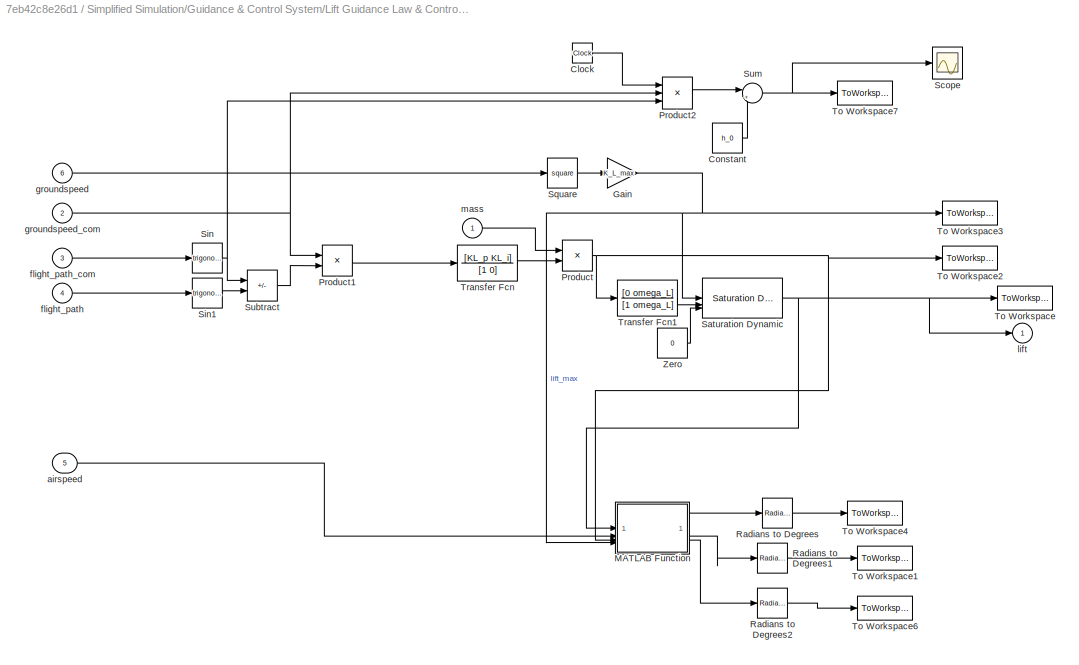
BLOCK [SubSystem] Simplified Simulation/Guidance & Control System/Lift Guidance Law & Controller Dynamics
  ShowPortLabels = none
BLOCK [Clock] Simplified Simulation/Guidance & Control System/Lift Guidance Law & Controller Dynamics/Clock
BLOCK [Constant] Simplified Simulation/Guidance & Control System/Lift Guidance Law & Controller Dynamics/Constant
  Value = h_0
BLOCK [Gain] Simplified Simulation/Guidance & Control System/Lift Guidance Law & Controller Dynamics/Gain
  Gain = K_L_max
BLOCK [SubSystem] Simplified Simulation/Guidance & Control System/Lift Guidance Law & Controller Dynamics/MATLAB Function
  ErrorFcn = Stateflow.Translate.translate
  PermitHierarchicalResolution = ExplicitOnly
  SFBlockType = MATLAB Function
  TreatAsAtomicUnit = on
BLOCK [Demux] Simplified Simulation/Guidance & Control System/Lift Guidance Law & Controller Dynamics/MATLAB Function/ Demux 
  Outputs = 1
BLOCK [S-Function] Simplified Simulation/Guidance & Control System/Lift Guidance Law & Controller Dynamics/MATLAB Function/ SFunction 
  EnableBusSupport = on
  FunctionName = sf_sfun
  PortCounts = [4 4]
  SFcnIsStateOwnerBlock = off
  SFunctionDeploymentMode = off
  Tag = Stateflow S-Function 7
BLOCK [Terminator] Simplified Simulation/Guidance & Control System/Lift Guidance Law & Controller Dynamics/MATLAB Function/ Terminator 
BLOCK [Inport] Simplified Simulation/Guidance & Control System/Lift Guidance Law & Controller Dynamics/MATLAB Function/L
BLOCK [Inport] Simplified Simulation/Guidance & Control System/Lift Guidance Law & Controller Dynamics/MATLAB Function/L_c
  Port = 3
BLOCK [Inport] Simplified Simulation/Guidance & Control System/Lift Guidance Law & Controller Dynamics/MATLAB Function/L_max
  Port = 4
BLOCK [Inport] Simplified Simulation/Guidance & Control System/Lift Guidance Law & Controller Dynamics/MATLAB Function/airspeed
  Port = 2
BLOCK [Outport] Simplified Simulation/Guidance & Control System/Lift Guidance Law & Controller Dynamics/MATLAB Function/alpha
  Port = 2
BLOCK [Outport] Simplified Simulation/Guidance & Control System/Lift Guidance Law & Controller Dynamics/MATLAB Function/alpha_c
BLOCK [Outport] Simplified Simulation/Guidance & Control System/Lift Guidance Law & Controller Dynamics/MATLAB Function/alpha_max
  Port = 3
BLOCK [Product] Simplified Simulation/Guidance & Control System/Lift Guidance Law & Controller Dynamics/Product
BLOCK [Product] Simplified Simulation/Guidance & Control System/Lift Guidance Law & Controller Dynamics/Product1
BLOCK [Product] Simplified Simulation/Guidance & Control System/Lift Guidance Law & Controller Dynamics/Product2
  Inputs = 3
BLOCK [Reference] Simplified Simulation/Guidance & Control System/Lift Guidance Law & Controller Dynamics/Radians to Degrees  REF=simulink_extras/Transformations/Radians
to Degrees
  SourceBlock = simulink_extras/Transformations/Radians\nto Degrees
  SourceType = RadiansToDegrees
BLOCK [Reference] Simplified Simulation/Guidance & Control System/Lift Guidance Law & Controller Dynamics/Radians to Degrees1  REF=simulink_extras/Transformations/Radians
to Degrees
  SourceBlock = simulink_extras/Transformations/Radians\nto Degrees
  SourceType = RadiansToDegrees
BLOCK [Reference] Simplified Simulation/Guidance & Control System/Lift Guidance Law & Controller Dynamics/Radians to Degrees2  REF=simulink_extras/Transformations/Radians
to Degrees
  SourceBlock = simulink_extras/Transformations/Radians\nto Degrees
  SourceType = RadiansToDegrees
BLOCK [Reference] Simplified Simulation/Guidance & Control System/Lift Guidance Law & Controller Dynamics/Saturation Dynamic  REF=simulink/Discontinuities/Saturation
Dynamic
  SourceBlock = simulink/Discontinuities/Saturation\nDynamic
  SourceType = Saturation Dynamic
BLOCK [Scope] Simplified Simulation/Guidance & Control System/Lift Guidance Law & Controller Dynamics/Scope
  Floating = off
  NumInputPorts = 1
  ScopeSpecificationString = Simulink.scopes.TimeScopeBlockCfg('CurrentConfiguration', extmgr.ConfigurationSet(extmgr.Configuration('Core','General UI',true),extmgr.Configuration('Core','Source UI',true),extmgr.Configuration('Sources','WiredSimulink',true,'DataLoggingVariableName','ScopeData4'),extmgr.Configuration('Visuals','Time Domain',true,'SerializedDisplays',{struct('MinYLimReal','17842.89537','MaxYLimReal','39413.9417'...<+1477ch>
BLOCK [Trigonometry] Simplified Simulation/Guidance & Control System/Lift Guidance Law & Controller Dynamics/Sin
BLOCK [Trigonometry] Simplified Simulation/Guidance & Control System/Lift Guidance Law & Controller Dynamics/Sin1
BLOCK [Math] Simplified Simulation/Guidance & Control System/Lift Guidance Law & Controller Dynamics/Square
  Operator = square
BLOCK [Sum] Simplified Simulation/Guidance & Control System/Lift Guidance Law & Controller Dynamics/Subtract
  IconShape = rectangular
  Inputs = +-
BLOCK [Sum] Simplified Simulation/Guidance & Control System/Lift Guidance Law & Controller Dynamics/Sum
  Inputs = |++
BLOCK [ToWorkspace] Simplified Simulation/Guidance & Control System/Lift Guidance Law & Controller Dynamics/To Workspace
  VariableName = lift
BLOCK [ToWorkspace] Simplified Simulation/Guidance & Control System/Lift Guidance Law & Controller Dynamics/To Workspace1
  VariableName = alpha
BLOCK [ToWorkspace] Simplified Simulation/Guidance & Control System/Lift Guidance Law & Controller Dynamics/To Workspace2
  VariableName = lift_com
BLOCK [ToWorkspace] Simplified Simulation/Guidance & Control System/Lift Guidance Law & Controller Dynamics/To Workspace3
  VariableName = lift_max
BLOCK [ToWorkspace] Simplified Simulation/Guidance & Control System/Lift Guidance Law & Controller Dynamics/To Workspace4
  VariableName = alpha_com
BLOCK [ToWorkspace] Simplified Simulation/Guidance & Control System/Lift Guidance Law & Controller Dynamics/To Workspace6
  VariableName = alpha_max
BLOCK [ToWorkspace] Simplified Simulation/Guidance & Control System/Lift Guidance Law & Controller Dynamics/To Workspace7
  VariableName = altitude_com
BLOCK [TransferFcn] Simplified Simulation/Guidance & Control System/Lift Guidance Law & Controller Dynamics/Transfer Fcn
  Denominator = [1 0]
  Numerator = [KL_p KL_i]
BLOCK [TransferFcn] Simplified Simulation/Guidance & Control System/Lift Guidance Law & Controller Dynamics/Transfer Fcn1
  Denominator = [1 omega_L]
  Numerator = [0 omega_L]
BLOCK [Constant] Simplified Simulation/Guidance & Control System/Lift Guidance Law & Controller Dynamics/Zero
  OutDataTypeStr = Inherit: Inherit via back propagation
  Value = 0
BLOCK [Inport] Simplified Simulation/Guidance & Control System/Lift Guidance Law & Controller Dynamics/airspeed
  Port = 5
BLOCK [Inport] Simplified Simulation/Guidance & Control System/Lift Guidance Law & Controller Dynamics/flight_path
  Port = 4
BLOCK [Inport] Simplified Simulation/Guidance & Control System/Lift Guidance Law & Controller Dynamics/flight_path_com
  Port = 3
BLOCK [Inport] Simplified Simulation/Guidance & Control System/Lift Guidance Law & Controller Dynamics/groundspeed
  Port = 6
BLOCK [Inport] Simplified Simulation/Guidance & Control System/Lift Guidance Law & Controller Dynamics/groundspeed_com
  Port = 2
BLOCK [Outport] Simplified Simulation/Guidance & Control System/Lift Guidance Law & Controller Dynamics/lift
BLOCK [Inport] Simplified Simulation/Guidance & Control System/Lift Guidance Law & Controller Dynamics/mass
BLOCK [SubSystem] Simplified Simulation/Guidance & Control System/Thrust Guidance Law & Controller Dynamics
  ShowPortLabels = none
BLOCK [Product] Simplified Simulation/Guidance & Control System/Thrust Guidance Law & Controller Dynamics/Product
BLOCK [Saturate] Simplified Simulation/Guidance & Control System/Thrust Guidance Law & Controller Dynamics/Saturation
  LowerLimit = 0
  UpperLimit = T_max
BLOCK [Sum] Simplified Simulation/Guidance & Control System/Thrust Guidance Law & Controller Dynamics/Subtract
  IconShape = rectangular
  Inputs = +-
BLOCK [ToWorkspace] Simplified Simulation/Guidance & Control System/Thrust Guidance Law & Controller Dynamics/To Workspace
  VariableName = thrust
BLOCK [ToWorkspace] Simplified Simulation/Guidance & Control System/Thrust Guidance Law & Controller Dynamics/To Workspace1
  VariableName = thrust_com
BLOCK [TransferFcn] Simplified Simulation/Guidance & Control System/Thrust Guidance Law & Controller Dynamics/Transfer Fcn
  Denominator = [1 0]
  Numerator = [KT_p KT_i]
BLOCK [TransferFcn] Simplified Simulation/Guidance & Control System/Thrust Guidance Law & Controller Dynamics/Transfer Fcn1
  Denominator = [1 omega_t]
  Numerator = [0 omega_t]
BLOCK [Inport] Simplified Simulation/Guidance & Control System/Thrust Guidance Law & Controller Dynamics/groundspeed
  Port = 3
BLOCK [Inport] Simplified Simulation/Guidance & Control System/Thrust Guidance Law & Controller Dynamics/groundspeed_com
  Port = 2
BLOCK [Inport] Simplified Simulation/Guidance & Control System/Thrust Guidance Law & Controller Dynamics/mass
BLOCK [Outport] Simplified Simulation/Guidance & Control System/Thrust Guidance Law & Controller Dynamics/thrust
BLOCK [Inport] Simplified Simulation/Guidance & Control System/airspeed
  Port = 6
BLOCK [Outport] Simplified Simulation/Guidance & Control System/bank
  Port = 3
BLOCK [Inport] Simplified Simulation/Guidance & Control System/flight-path
  Port = 5
BLOCK [Inport] Simplified Simulation/Guidance & Control System/flight-path_com
  Port = 4
BLOCK [Inport] Simplified Simulation/Guidance & Control System/groundspeed
  Port = 3
BLOCK [Inport] Simplified Simulation/Guidance & Control System/groundspeed_com
  Port = 2
BLOCK [Inport] Simplified Simulation/Guidance & Control System/heading
  Port = 8
BLOCK [Inport] Simplified Simulation/Guidance & Control System/heading_com
  Port = 7
BLOCK [Outport] Simplified Simulation/Guidance & Control System/lift
  Port = 2
BLOCK [Inport] Simplified Simulation/Guidance & Control System/mass
BLOCK [Outport] Simplified Simulation/Guidance & Control System/thrust
BLOCK [SubSystem] Simplified Simulation/Output
BLOCK [Clock] Simplified Simulation/Output/Clock
BLOCK [Gain] Simplified Simulation/Output/Gain
  Gain = 180/pi
BLOCK [Gain] Simplified Simulation/Output/Gain1
  Gain = 180/pi
BLOCK [Gain] Simplified Simulation/Output/Gain2
  Gain = 0.681818
BLOCK [Gain] Simplified Simulation/Output/Gain3
  Gain = 180/pi
BLOCK [Gain] Simplified Simulation/Output/Gain4
  Gain = 180/pi
BLOCK [Scope] Simplified Simulation/Output/Scope
  Floating = off
  NumInputPorts = 1
  ScopeSpecificationString = Simulink.scopes.TimeScopeBlockCfg('CurrentConfiguration', extmgr.ConfigurationSet(extmgr.Configuration('Core','General UI',true),extmgr.Configuration('Core','Source UI',true),extmgr.Configuration('Sources','WiredSimulink',true),extmgr.Configuration('Visuals','Time Domain',true,'SerializedDisplays',{struct('MinYLimReal','403.85935','MaxYLimReal','454.96458','YLabelReal','','MinYLimMag','403.85935',...<+1428ch>
BLOCK [Scope] Simplified Simulation/Output/Scope1
  Floating = off
  NumInputPorts = 1
  ScopeSpecificationString = Simulink.scopes.TimeScopeBlockCfg('CurrentConfiguration', extmgr.ConfigurationSet(extmgr.Configuration('Core','General UI',true),extmgr.Configuration('Core','Source UI',true),extmgr.Configuration('Sources','WiredSimulink',true,'DataLoggingVariableName','ScopeData1'),extmgr.Configuration('Visuals','Time Domain',true,'SerializedDisplays',{struct('MinYLimReal','-1.875','MaxYLimReal','16.875','YLabelR...<+1444ch>
BLOCK [Scope] Simplified Simulation/Output/Scope2
  Floating = off
  NumInputPorts = 1
  ScopeSpecificationString = Simulink.scopes.TimeScopeBlockCfg('CurrentConfiguration', extmgr.ConfigurationSet(extmgr.Configuration('Core','General UI',true),extmgr.Configuration('Core','Source UI',true),extmgr.Configuration('Sources','WiredSimulink',true,'DataLoggingVariableName','ScopeData2'),extmgr.Configuration('Visuals','Time Domain',true,'SerializedDisplays',{struct('MinYLimReal','-1.88831','MaxYLimReal','5.75366','YLab...<+1453ch>
BLOCK [Scope] Simplified Simulation/Output/Scope3
  Floating = off
  NumInputPorts = 1
  ScopeSpecificationString = Simulink.scopes.TimeScopeBlockCfg('CurrentConfiguration', extmgr.ConfigurationSet(extmgr.Configuration('Core','General UI',true),extmgr.Configuration('Core','Source UI',true),extmgr.Configuration('Sources','WiredSimulink',true,'DataLoggingVariableName','ScopeData3'),extmgr.Configuration('Visuals','Time Domain',true,'SerializedDisplays',{struct('MinYLimReal','18193.77818','MaxYLimReal','35694.57269...<+1486ch>
BLOCK [ToWorkspace] Simplified Simulation/Output/To Workspace
  VariableName = time
BLOCK [ToWorkspace] Simplified Simulation/Output/To Workspace1
  VariableName = groundspeed
BLOCK [ToWorkspace] Simplified Simulation/Output/To Workspace2
  VariableName = flight_path
BLOCK [ToWorkspace] Simplified Simulation/Output/To Workspace3
  VariableName = heading
BLOCK [ToWorkspace] Simplified Simulation/Output/To Workspace4
  VariableName = latitude
BLOCK [ToWorkspace] Simplified Simulation/Output/To Workspace5
  VariableName = longitude
BLOCK [ToWorkspace] Simplified Simulation/Output/To Workspace6
  VariableName = altitude
BLOCK [ToWorkspace] Simplified Simulation/Output/To Workspace7
  VariableName = airspeed
BLOCK [ToWorkspace] Simplified Simulation/Output/To Workspace8
  VariableName = mass
BLOCK [Inport] Simplified Simulation/Output/airspeed
  Port = 8
BLOCK [Inport] Simplified Simulation/Output/altitude
  Port = 7
BLOCK [Inport] Simplified Simulation/Output/flight-path
  Port = 3
BLOCK [Inport] Simplified Simulation/Output/groundspeed
  Port = 2
BLOCK [Inport] Simplified Simulation/Output/heading
  Port = 4
BLOCK [Inport] Simplified Simulation/Output/latitude
  Port = 5
BLOCK [Inport] Simplified Simulation/Output/longitude
  Port = 6
BLOCK [Inport] Simplified Simulation/Output/mass
BLOCK [SubSystem] Simplified Simulation/Planning System
BLOCK [Gain] Simplified Simulation/Planning System/CD1
  Gain = 180/pi
  SaturateOnIntegerOverflow = on
BLOCK [Gain] Simplified Simulation/Planning System/CD7
  Gain = 180/pi
  SaturateOnIntegerOverflow = on
BLOCK [Gain] Simplified Simulation/Planning System/CD8
  Gain = 0.681818
  SaturateOnIntegerOverflow = on
BLOCK [SubSystem] Simplified Simulation/Planning System/Command System
  ErrorFcn = Stateflow.Translate.translate
  PermitHierarchicalResolution = ExplicitOnly
  SFBlockType = MATLAB Function
  TreatAsAtomicUnit = on
BLOCK [Demux] Simplified Simulation/Planning System/Command System/ Demux 
  Outputs = 1
BLOCK [S-Function] Simplified Simulation/Planning System/Command System/ SFunction 
  EnableBusSupport = on
  FunctionName = sf_sfun
  PortCounts = [3 4]
  SFcnIsStateOwnerBlock = off
  SFunctionDeploymentMode = off
  Tag = Stateflow S-Function 1
BLOCK [Terminator] Simplified Simulation/Planning System/Command System/ Terminator 
BLOCK [Inport] Simplified Simulation/Planning System/Command System/altitude
  Port = 3
BLOCK [Outport] Simplified Simulation/Planning System/Command System/flight_path_com
  Port = 2
BLOCK [Outport] Simplified Simulation/Planning System/Command System/groundspeed_com
BLOCK [Outport] Simplified Simulation/Planning System/Command System/heading_com
  Port = 3
BLOCK [Inport] Simplified Simulation/Planning System/Command System/latitude
BLOCK [Inport] Simplified Simulation/Planning System/Command System/longitude
  Port = 2
BLOCK [ToWorkspace] Simplified Simulation/Planning System/To Workspace10
  VariableName = heading_com
BLOCK [ToWorkspace] Simplified Simulation/Planning System/To Workspace5
  VariableName = groundspeed_com
BLOCK [ToWorkspace] Simplified Simulation/Planning System/To Workspace7
  VariableName = flight_path_com
BLOCK [Inport] Simplified Simulation/Planning System/altitude
  Port = 3
BLOCK [Outport] Simplified Simulation/Planning System/flight-path_com
  Port = 2
BLOCK [Outport] Simplified Simulation/Planning System/groundspeed_com
BLOCK [Outport] Simplified Simulation/Planning System/heading_com
  Port = 3
BLOCK [Inport] Simplified Simulation/Planning System/latitude
BLOCK [Inport] Simplified Simulation/Planning System/longitude
  Port = 2
BLOCK [SubSystem] Simplified Simulation/Vehicle Dynamics
BLOCK [Outport] Simplified Simulation/Vehicle Dynamics/ flight-path 
  Port = 3
BLOCK [Outport] Simplified Simulation/Vehicle Dynamics/ groundspeed 
  Port = 2
BLOCK [Outport] Simplified Simulation/Vehicle Dynamics/ heading 
  Port = 4
BLOCK [Outport] Simplified Simulation/Vehicle Dynamics/ mass
BLOCK [SubSystem] Simplified Simulation/Vehicle Dynamics/Flight Path Rate Equation
BLOCK [Integrator] Simplified Simulation/Vehicle Dynamics/Flight Path Rate Equation/Integrator
  InitialCondition = gamma_0
BLOCK [SubSystem] Simplified Simulation/Vehicle Dynamics/Flight Path Rate Equation/MATLAB Function
  ErrorFcn = Stateflow.Translate.translate
  PermitHierarchicalResolution = ExplicitOnly
  SFBlockType = MATLAB Function
  TreatAsAtomicUnit = on
BLOCK [Demux] Simplified Simulation/Vehicle Dynamics/Flight Path Rate Equation/MATLAB Function/ Demux 
  Outputs = 1
BLOCK [S-Function] Simplified Simulation/Vehicle Dynamics/Flight Path Rate Equation/MATLAB Function/ SFunction 
  EnableBusSupport = on
  FunctionName = sf_sfun
  PortCounts = [5 2]
  SFcnIsStateOwnerBlock = off
  SFunctionDeploymentMode = off
  Tag = Stateflow S-Function 4
BLOCK [Terminator] Simplified Simulation/Vehicle Dynamics/Flight Path Rate Equation/MATLAB Function/ Terminator 
BLOCK [Inport] Simplified Simulation/Vehicle Dynamics/Flight Path Rate Equation/MATLAB Function/L
BLOCK [Inport] Simplified Simulation/Vehicle Dynamics/Flight Path Rate Equation/MATLAB Function/gamma
  Port = 4
BLOCK [Outport] Simplified Simulation/Vehicle Dynamics/Flight Path Rate Equation/MATLAB Function/gamma_der
BLOCK [Inport] Simplified Simulation/Vehicle Dynamics/Flight Path Rate Equation/MATLAB Function/m
  Port = 5
BLOCK [Inport] Simplified Simulation/Vehicle Dynamics/Flight Path Rate Equation/MATLAB Function/mu
  Port = 3
BLOCK [Inport] Simplified Simulation/Vehicle Dynamics/Flight Path Rate Equation/MATLAB Function/v
  Port = 2
BLOCK [Inport] Simplified Simulation/Vehicle Dynamics/Flight Path Rate Equation/bank
  Port = 4
BLOCK [Outport] Simplified Simulation/Vehicle Dynamics/Flight Path Rate Equation/flight path
BLOCK [Inport] Simplified Simulation/Vehicle Dynamics/Flight Path Rate Equation/groundspeed
BLOCK [Inport] Simplified Simulation/Vehicle Dynamics/Flight Path Rate Equation/lift 
  Port = 3
BLOCK [Inport] Simplified Simulation/Vehicle Dynamics/Flight Path Rate Equation/mass
  Port = 2
BLOCK [SubSystem] Simplified Simulation/Vehicle Dynamics/Groundspeed Rate Equation
BLOCK [Integrator] Simplified Simulation/Vehicle Dynamics/Groundspeed Rate Equation/Integrator
  InitialCondition = v_bn_0
BLOCK [SubSystem] Simplified Simulation/Vehicle Dynamics/Groundspeed Rate Equation/MATLAB Function
  ErrorFcn = Stateflow.Translate.translate
  PermitHierarchicalResolution = ExplicitOnly
  SFBlockType = MATLAB Function
  TreatAsAtomicUnit = on
BLOCK [Demux] Simplified Simulation/Vehicle Dynamics/Groundspeed Rate Equation/MATLAB Function/ Demux 
  Outputs = 1
BLOCK [S-Function] Simplified Simulation/Vehicle Dynamics/Groundspeed Rate Equation/MATLAB Function/ SFunction 
  EnableBusSupport = on
  FunctionName = sf_sfun
  PortCounts = [3 2]
  SFcnIsStateOwnerBlock = off
  SFunctionDeploymentMode = off
  Tag = Stateflow S-Function 2
BLOCK [Terminator] Simplified Simulation/Vehicle Dynamics/Groundspeed Rate Equation/MATLAB Function/ Terminator 
BLOCK [Outport] Simplified Simulation/Vehicle Dynamics/Groundspeed Rate Equation/MATLAB Function/D
BLOCK [Inport] Simplified Simulation/Vehicle Dynamics/Groundspeed Rate Equation/MATLAB Function/L
  Port = 3
BLOCK [Inport] Simplified Simulation/Vehicle Dynamics/Groundspeed Rate Equation/MATLAB Function/V_mag
  Port = 2
BLOCK [Inport] Simplified Simulation/Vehicle Dynamics/Groundspeed Rate Equation/MATLAB Function/rho
BLOCK [SubSystem] Simplified Simulation/Vehicle Dynamics/Groundspeed Rate Equation/MATLAB Function1
  ErrorFcn = Stateflow.Translate.translate
  PermitHierarchicalResolution = ExplicitOnly
  SFBlockType = MATLAB Function
  TreatAsAtomicUnit = on
BLOCK [Demux] Simplified Simulation/Vehicle Dynamics/Groundspeed Rate Equation/MATLAB Function1/ Demux 
  Outputs = 1
BLOCK [S-Function] Simplified Simulation/Vehicle Dynamics/Groundspeed Rate Equation/MATLAB Function1/ SFunction 
  EnableBusSupport = on
  FunctionName = sf_sfun
  PortCounts = [4 2]
  SFcnIsStateOwnerBlock = off
  SFunctionDeploymentMode = off
  Tag = Stateflow S-Function 3
BLOCK [Terminator] Simplified Simulation/Vehicle Dynamics/Groundspeed Rate Equation/MATLAB Function1/ Terminator 
BLOCK [Inport] Simplified Simulation/Vehicle Dynamics/Groundspeed Rate Equation/MATLAB Function1/D
BLOCK [Inport] Simplified Simulation/Vehicle Dynamics/Groundspeed Rate Equation/MATLAB Function1/T
  Port = 2
BLOCK [Inport] Simplified Simulation/Vehicle Dynamics/Groundspeed Rate Equation/MATLAB Function1/gamma
  Port = 3
BLOCK [Inport] Simplified Simulation/Vehicle Dynamics/Groundspeed Rate Equation/MATLAB Function1/m
  Port = 4
BLOCK [Outport] Simplified Simulation/Vehicle Dynamics/Groundspeed Rate Equation/MATLAB Function1/v_der
BLOCK [ToWorkspace] Simplified Simulation/Vehicle Dynamics/Groundspeed Rate Equation/To Workspace3
  VariableName = drag
BLOCK [Inport] Simplified Simulation/Vehicle Dynamics/Groundspeed Rate Equation/airspeed
  Port = 5
BLOCK [Inport] Simplified Simulation/Vehicle Dynamics/Groundspeed Rate Equation/flight path
  Port = 4
BLOCK [Outport] Simplified Simulation/Vehicle Dynamics/Groundspeed Rate Equation/groundspeed
BLOCK [Inport] Simplified Simulation/Vehicle Dynamics/Groundspeed Rate Equation/lift
  Port = 2
BLOCK [Inport] Simplified Simulation/Vehicle Dynamics/Groundspeed Rate Equation/mass
BLOCK [Constant] Simplified Simulation/Vehicle Dynamics/Groundspeed Rate Equation/rho
  Value = 2.3769*10^-3
BLOCK [Inport] Simplified Simulation/Vehicle Dynamics/Groundspeed Rate Equation/thrust
  Port = 3
BLOCK [SubSystem] Simplified Simulation/Vehicle Dynamics/Heading Rate Equation
BLOCK [Integrator] Simplified Simulation/Vehicle Dynamics/Heading Rate Equation/Integrator
  InitialCondition = sigma_0
BLOCK [SubSystem] Simplified Simulation/Vehicle Dynamics/Heading Rate Equation/MATLAB Function
  ErrorFcn = Stateflow.Translate.translate
  PermitHierarchicalResolution = ExplicitOnly
  SFBlockType = MATLAB Function
  TreatAsAtomicUnit = on
BLOCK [Demux] Simplified Simulation/Vehicle Dynamics/Heading Rate Equation/MATLAB Function/ Demux 
  Outputs = 1
BLOCK [S-Function] Simplified Simulation/Vehicle Dynamics/Heading Rate Equation/MATLAB Function/ SFunction 
  EnableBusSupport = on
  FunctionName = sf_sfun
  PortCounts = [5 2]
  SFcnIsStateOwnerBlock = off
  SFunctionDeploymentMode = off
  Tag = Stateflow S-Function 5
BLOCK [Terminator] Simplified Simulation/Vehicle Dynamics/Heading Rate Equation/MATLAB Function/ Terminator 
BLOCK [Inport] Simplified Simulation/Vehicle Dynamics/Heading Rate Equation/MATLAB Function/L
BLOCK [Inport] Simplified Simulation/Vehicle Dynamics/Heading Rate Equation/MATLAB Function/bank
  Port = 3
BLOCK [Inport] Simplified Simulation/Vehicle Dynamics/Heading Rate Equation/MATLAB Function/gamma
  Port = 5
BLOCK [Outport] Simplified Simulation/Vehicle Dynamics/Heading Rate Equation/MATLAB Function/head_der
BLOCK [Inport] Simplified Simulation/Vehicle Dynamics/Heading Rate Equation/MATLAB Function/m
  Port = 2
BLOCK [Inport] Simplified Simulation/Vehicle Dynamics/Heading Rate Equation/MATLAB Function/v
  Port = 4
BLOCK [Inport] Simplified Simulation/Vehicle Dynamics/Heading Rate Equation/bank
  Port = 5
BLOCK [Inport] Simplified Simulation/Vehicle Dynamics/Heading Rate Equation/flight path
BLOCK [Inport] Simplified Simulation/Vehicle Dynamics/Heading Rate Equation/groundspeed
  Port = 2
BLOCK [Outport] Simplified Simulation/Vehicle Dynamics/Heading Rate Equation/heading
BLOCK [Inport] Simplified Simulation/Vehicle Dynamics/Heading Rate Equation/lift 
  Port = 4
BLOCK [Inport] Simplified Simulation/Vehicle Dynamics/Heading Rate Equation/mass
  Port = 3
BLOCK [SubSystem] Simplified Simulation/Vehicle Dynamics/Inertial Position and Airspeed
BLOCK [Integrator] Simplified Simulation/Vehicle Dynamics/Inertial Position and Airspeed/Integrator
  InitialCondition = lat_0
BLOCK [Integrator] Simplified Simulation/Vehicle Dynamics/Inertial Position and Airspeed/Integrator1
  InitialCondition = long_0
BLOCK [Integrator] Simplified Simulation/Vehicle Dynamics/Inertial Position and Airspeed/Integrator2
  InitialCondition = h_0
BLOCK [SubSystem] Simplified Simulation/Vehicle Dynamics/Inertial Position and Airspeed/MATLAB Function
  ErrorFcn = Stateflow.Translate.translate
  PermitHierarchicalResolution = ExplicitOnly
  SFBlockType = MATLAB Function
  TreatAsAtomicUnit = on
BLOCK [Demux] Simplified Simulation/Vehicle Dynamics/Inertial Position and Airspeed/MATLAB Function/ Demux 
  Outputs = 1
BLOCK [S-Function] Simplified Simulation/Vehicle Dynamics/Inertial Position and Airspeed/MATLAB Function/ SFunction 
  EnableBusSupport = on
  FunctionName = sf_sfun
  PortCounts = [5 5]
  SFcnIsStateOwnerBlock = off
  SFunctionDeploymentMode = off
  Tag = Stateflow S-Function 6
BLOCK [Terminator] Simplified Simulation/Vehicle Dynamics/Inertial Position and Airspeed/MATLAB Function/ Terminator 
BLOCK [Inport] Simplified Simulation/Vehicle Dynamics/Inertial Position and Airspeed/MATLAB Function/gamma
  Port = 3
BLOCK [Inport] Simplified Simulation/Vehicle Dynamics/Inertial Position and Airspeed/MATLAB Function/h
  Port = 5
BLOCK [Outport] Simplified Simulation/Vehicle Dynamics/Inertial Position and Airspeed/MATLAB Function/h_der
  Port = 3
BLOCK [Inport] Simplified Simulation/Vehicle Dynamics/Inertial Position and Airspeed/MATLAB Function/head
  Port = 2
BLOCK [Inport] Simplified Simulation/Vehicle Dynamics/Inertial Position and Airspeed/MATLAB Function/lat
  Port = 4
BLOCK [Outport] Simplified Simulation/Vehicle Dynamics/Inertial Position and Airspeed/MATLAB Function/lat_der
BLOCK [Outport] Simplified Simulation/Vehicle Dynamics/Inertial Position and Airspeed/MATLAB Function/long_der
  Port = 2
BLOCK [Inport] Simplified Simulation/Vehicle Dynamics/Inertial Position and Airspeed/MATLAB Function/v
BLOCK [Outport] Simplified Simulation/Vehicle Dynamics/Inertial Position and Airspeed/MATLAB Function/windspeed
  Port = 4
BLOCK [Outport] Simplified Simulation/Vehicle Dynamics/Inertial Position and Airspeed/airspeed
  Port = 4
BLOCK [Outport] Simplified Simulation/Vehicle Dynamics/Inertial Position and Airspeed/altitude
  Port = 3
BLOCK [Inport] Simplified Simulation/Vehicle Dynamics/Inertial Position and Airspeed/flight path 
  Port = 2
BLOCK [Inport] Simplified Simulation/Vehicle Dynamics/Inertial Position and Airspeed/groundspeed
BLOCK [Inport] Simplified Simulation/Vehicle Dynamics/Inertial Position and Airspeed/heading
  Port = 3
BLOCK [Outport] Simplified Simulation/Vehicle Dynamics/Inertial Position and Airspeed/latitude
BLOCK [Outport] Simplified Simulation/Vehicle Dynamics/Inertial Position and Airspeed/longitude
  Port = 2
BLOCK [SubSystem] Simplified Simulation/Vehicle Dynamics/Mass Rate Equation
BLOCK [Gain] Simplified Simulation/Vehicle Dynamics/Mass Rate Equation/Gain
  Gain = -K_f
BLOCK [Gain] Simplified Simulation/Vehicle Dynamics/Mass Rate Equation/Gain1
  Gain = g0
BLOCK [Integrator] Simplified Simulation/Vehicle Dynamics/Mass Rate Equation/Integrator
  InitialCondition = 200000/g0
BLOCK [ToWorkspace] Simplified Simulation/Vehicle Dynamics/Mass Rate Equation/To Workspace2
  VariableName = weight
BLOCK [Outport] Simplified Simulation/Vehicle Dynamics/Mass Rate Equation/mass 
BLOCK [Inport] Simplified Simulation/Vehicle Dynamics/Mass Rate Equation/thrust
BLOCK [Outport] Simplified Simulation/Vehicle Dynamics/airspeed
  Port = 8
BLOCK [Outport] Simplified Simulation/Vehicle Dynamics/altitude
  Port = 7
BLOCK [Inport] Simplified Simulation/Vehicle Dynamics/bank
  Port = 3
BLOCK [Outport] Simplified Simulation/Vehicle Dynamics/latitude
  Port = 5
BLOCK [Inport] Simplified Simulation/Vehicle Dynamics/lift 
  Port = 2
BLOCK [Outport] Simplified Simulation/Vehicle Dynamics/longitude
  Port = 6
BLOCK [Inport] Simplified Simulation/Vehicle Dynamics/thrust 
ANNOTATION Complex Simulation/Output1: Output For Plotting
ANNOTATION Simplified Simulation/Output: Output For Plotting
LINE Complex Simulation/Guidance & Control System1/Bank Angle Guidance Law & Controller Dynamics/Divide:1 -> Complex Simulation/Guidance & Control System1/Bank Angle Guidance Law & Controller Dynamics/Product:1
LINE Complex Simulation/Guidance & Control System1/Bank Angle Guidance Law & Controller Dynamics/Gain:1 -> Complex Simulation/Guidance & Control System1/Bank Angle Guidance Law & Controller Dynamics/Divide:1
NET Complex Simulation/Guidance & Control System1/Bank Angle Guidance Law & Controller Dynamics/Product:1 -> Complex Simulation/Guidance & Control System1/Bank Angle Guidance Law & Controller Dynamics/To Workspace1:1, Complex Simulation/Guidance & Control System1/Bank Angle Guidance Law & Controller Dynamics/Transfer Fcn:1
LINE Complex Simulation/Guidance & Control System1/Bank Angle Guidance Law & Controller Dynamics/Radians to Degrees:1 -> Complex Simulation/Guidance & Control System1/Bank Angle Guidance Law & Controller Dynamics/To Workspace:1
NET Complex Simulation/Guidance & Control System1/Bank Angle Guidance Law & Controller Dynamics/Saturation:1 -> Complex Simulation/Guidance & Control System1/Bank Angle Guidance Law & Controller Dynamics/Radians to Degrees:1, Complex Simulation/Guidance & Control System1/Bank Angle Guidance Law & Controller Dynamics/bank:1
LINE Complex Simulation/Guidance & Control System1/Bank Angle Guidance Law & Controller Dynamics/Subtract:1 -> Complex Simulation/Guidance & Control System1/Bank Angle Guidance Law & Controller Dynamics/Product:2
LINE Complex Simulation/Guidance & Control System1/Bank Angle Guidance Law & Controller Dynamics/Transfer Fcn:1 -> Complex Simulation/Guidance & Control System1/Bank Angle Guidance Law & Controller Dynamics/Saturation:1
LINE Complex Simulation/Guidance & Control System1/Bank Angle Guidance Law & Controller Dynamics/g:1 -> Complex Simulation/Guidance & Control System1/Bank Angle Guidance Law & Controller Dynamics/Divide:2
LINE Complex Simulation/Guidance & Control System1/Bank Angle Guidance Law & Controller Dynamics/groundspeed_com:1 -> Complex Simulation/Guidance & Control System1/Bank Angle Guidance Law & Controller Dynamics/Gain:1
LINE Complex Simulation/Guidance & Control System1/Bank Angle Guidance Law & Controller Dynamics/heading:1 -> Complex Simulation/Guidance & Control System1/Bank Angle Guidance Law & Controller Dynamics/Subtract:2
LINE Complex Simulation/Guidance & Control System1/Bank Angle Guidance Law & Controller Dynamics/heading_com:1 -> Complex Simulation/Guidance & Control System1/Bank Angle Guidance Law & Controller Dynamics/Subtract:1
LINE Complex Simulation/Guidance & Control System1/Bank Angle Guidance Law & Controller Dynamics:1 -> Complex Simulation/Guidance & Control System1/bank:1
LINE Complex Simulation/Guidance & Control System1/Lift Guidance Law & Controller Dynamics/Clock:1 -> Complex Simulation/Guidance & Control System1/Lift Guidance Law & Controller Dynamics/Product2:1
LINE Complex Simulation/Guidance & Control System1/Lift Guidance Law & Controller Dynamics/Constant:1 -> Complex Simulation/Guidance & Control System1/Lift Guidance Law & Controller Dynamics/Sum:2
NET Complex Simulation/Guidance & Control System1/Lift Guidance Law & Controller Dynamics/Gain:1 -> Complex Simulation/Guidance & Control System1/Lift Guidance Law & Controller Dynamics/MATLAB Function:4, Complex Simulation/Guidance & Control System1/Lift Guidance Law & Controller Dynamics/Saturation Dynamic:1, Complex Simulation/Guidance & Control System1/Lift Guidance Law & Controller Dynamics/To Workspace3:1
LINE Complex Simulation/Guidance & Control System1/Lift Guidance Law & Controller Dynamics/MATLAB Function:1 -> Complex Simulation/Guidance & Control System1/Lift Guidance Law & Controller Dynamics/Radians to Degrees:1
NET Complex Simulation/Guidance & Control System1/Lift Guidance Law & Controller Dynamics/MATLAB Function:2 -> Complex Simulation/Guidance & Control System1/Lift Guidance Law & Controller Dynamics/Radians to Degrees1:1, Complex Simulation/Guidance & Control System1/Lift Guidance Law & Controller Dynamics/alpha:1
LINE Complex Simulation/Guidance & Control System1/Lift Guidance Law & Controller Dynamics/MATLAB Function:3 -> Complex Simulation/Guidance & Control System1/Lift Guidance Law & Controller Dynamics/Radians to Degrees2:1
LINE Complex Simulation/Guidance & Control System1/Lift Guidance Law & Controller Dynamics/Product1:1 -> Complex Simulation/Guidance & Control System1/Lift Guidance Law & Controller Dynamics/Transfer Fcn:1
LINE Complex Simulation/Guidance & Control System1/Lift Guidance Law & Controller Dynamics/Product2:1 -> Complex Simulation/Guidance & Control System1/Lift Guidance Law & Controller Dynamics/Sum:1
NET Complex Simulation/Guidance & Control System1/Lift Guidance Law & Controller Dynamics/Product:1 -> Complex Simulation/Guidance & Control System1/Lift Guidance Law & Controller Dynamics/MATLAB Function:3, Complex Simulation/Guidance & Control System1/Lift Guidance Law & Controller Dynamics/To Workspace2:1, Complex Simulation/Guidance & Control System1/Lift Guidance Law & Controller Dynamics/Transfer Fcn1:1
LINE Complex Simulation/Guidance & Control System1/Lift Guidance Law & Controller Dynamics/Radians to Degrees1:1 -> Complex Simulation/Guidance & Control System1/Lift Guidance Law & Controller Dynamics/To Workspace1:1
LINE Complex Simulation/Guidance & Control System1/Lift Guidance Law & Controller Dynamics/Radians to Degrees2:1 -> Complex Simulation/Guidance & Control System1/Lift Guidance Law & Controller Dynamics/To Workspace6:1
LINE Complex Simulation/Guidance & Control System1/Lift Guidance Law & Controller Dynamics/Radians to Degrees:1 -> Complex Simulation/Guidance & Control System1/Lift Guidance Law & Controller Dynamics/To Workspace4:1
NET Complex Simulation/Guidance & Control System1/Lift Guidance Law & Controller Dynamics/Saturation Dynamic:1 -> Complex Simulation/Guidance & Control System1/Lift Guidance Law & Controller Dynamics/MATLAB Function:1, Complex Simulation/Guidance & Control System1/Lift Guidance Law & Controller Dynamics/To Workspace:1, Complex Simulation/Guidance & Control System1/Lift Guidance Law & Controller Dynamics/lift:1
LINE Complex Simulation/Guidance & Control System1/Lift Guidance Law & Controller Dynamics/Sin1:1 -> Complex Simulation/Guidance & Control System1/Lift Guidance Law & Controller Dynamics/Subtract:2
NET Complex Simulation/Guidance & Control System1/Lift Guidance Law & Controller Dynamics/Sin:1 -> Complex Simulation/Guidance & Control System1/Lift Guidance Law & Controller Dynamics/Product2:3, Complex Simulation/Guidance & Control System1/Lift Guidance Law & Controller Dynamics/Subtract:1
LINE Complex Simulation/Guidance & Control System1/Lift Guidance Law & Controller Dynamics/Square:1 -> Complex Simulation/Guidance & Control System1/Lift Guidance Law & Controller Dynamics/Gain:1
LINE Complex Simulation/Guidance & Control System1/Lift Guidance Law & Controller Dynamics/Subtract:1 -> Complex Simulation/Guidance & Control System1/Lift Guidance Law & Controller Dynamics/Product1:2
LINE Complex Simulation/Guidance & Control System1/Lift Guidance Law & Controller Dynamics/Sum:1 -> Complex Simulation/Guidance & Control System1/Lift Guidance Law & Controller Dynamics/To Workspace7:1
LINE Complex Simulation/Guidance & Control System1/Lift Guidance Law & Controller Dynamics/Transfer Fcn1:1 -> Complex Simulation/Guidance & Control System1/Lift Guidance Law & Controller Dynamics/Saturation Dynamic:2
LINE Complex Simulation/Guidance & Control System1/Lift Guidance Law & Controller Dynamics/Transfer Fcn:1 -> Complex Simulation/Guidance & Control System1/Lift Guidance Law & Controller Dynamics/Product:2
LINE Complex Simulation/Guidance & Control System1/Lift Guidance Law & Controller Dynamics/Zero:1 -> Complex Simulation/Guidance & Control System1/Lift Guidance Law & Controller Dynamics/Saturation Dynamic:3
LINE Complex Simulation/Guidance & Control System1/Lift Guidance Law & Controller Dynamics/airspeed:1 -> Complex Simulation/Guidance & Control System1/Lift Guidance Law & Controller Dynamics/MATLAB Function:2
LINE Complex Simulation/Guidance & Control System1/Lift Guidance Law & Controller Dynamics/flight_path:1 -> Complex Simulation/Guidance & Control System1/Lift Guidance Law & Controller Dynamics/Sin1:1
LINE Complex Simulation/Guidance & Control System1/Lift Guidance Law & Controller Dynamics/flight_path_com:1 -> Complex Simulation/Guidance & Control System1/Lift Guidance Law & Controller Dynamics/Sin:1
LINE Complex Simulation/Guidance & Control System1/Lift Guidance Law & Controller Dynamics/groundspeed:1 -> Complex Simulation/Guidance & Control System1/Lift Guidance Law & Controller Dynamics/Square:1
NET Complex Simulation/Guidance & Control System1/Lift Guidance Law & Controller Dynamics/groundspeed_com:1 -> Complex Simulation/Guidance & Control System1/Lift Guidance Law & Controller Dynamics/Product1:1, Complex Simulation/Guidance & Control System1/Lift Guidance Law & Controller Dynamics/Product2:2
LINE Complex Simulation/Guidance & Control System1/Lift Guidance Law & Controller Dynamics/mass:1 -> Complex Simulation/Guidance & Control System1/Lift Guidance Law & Controller Dynamics/Product:1
LINE Complex Simulation/Guidance & Control System1/Lift Guidance Law & Controller Dynamics/rho:1 -> Complex Simulation/Guidance & Control System1/Lift Guidance Law & Controller Dynamics/MATLAB Function:5
LINE Complex Simulation/Guidance & Control System1/Lift Guidance Law & Controller Dynamics:1 -> Complex Simulation/Guidance & Control System1/lift:1
LINE Complex Simulation/Guidance & Control System1/Lift Guidance Law & Controller Dynamics:2 -> Complex Simulation/Guidance & Control System1/alpha:1
NET Complex Simulation/Guidance & Control System1/Thrust Guidance Law & Controller Dynamics/Product:1 -> Complex Simulation/Guidance & Control System1/Thrust Guidance Law & Controller Dynamics/To Workspace1:1, Complex Simulation/Guidance & Control System1/Thrust Guidance Law & Controller Dynamics/Transfer Fcn1:1
NET Complex Simulation/Guidance & Control System1/Thrust Guidance Law & Controller Dynamics/Saturation:1 -> Complex Simulation/Guidance & Control System1/Thrust Guidance Law & Controller Dynamics/To Workspace:1, Complex Simulation/Guidance & Control System1/Thrust Guidance Law & Controller Dynamics/thrust:1
LINE Complex Simulation/Guidance & Control System1/Thrust Guidance Law & Controller Dynamics/Subtract:1 -> Complex Simulation/Guidance & Control System1/Thrust Guidance Law & Controller Dynamics/Transfer Fcn:1
LINE Complex Simulation/Guidance & Control System1/Thrust Guidance Law & Controller Dynamics/Transfer Fcn1:1 -> Complex Simulation/Guidance & Control System1/Thrust Guidance Law & Controller Dynamics/Saturation:1
LINE Complex Simulation/Guidance & Control System1/Thrust Guidance Law & Controller Dynamics/Transfer Fcn:1 -> Complex Simulation/Guidance & Control System1/Thrust Guidance Law & Controller Dynamics/Product:2
LINE Complex Simulation/Guidance & Control System1/Thrust Guidance Law & Controller Dynamics/groundspeed:1 -> Complex Simulation/Guidance & Control System1/Thrust Guidance Law & Controller Dynamics/Subtract:2
LINE Complex Simulation/Guidance & Control System1/Thrust Guidance Law & Controller Dynamics/groundspeed_com:1 -> Complex Simulation/Guidance & Control System1/Thrust Guidance Law & Controller Dynamics/Subtract:1
LINE Complex Simulation/Guidance & Control System1/Thrust Guidance Law & Controller Dynamics/mass:1 -> Complex Simulation/Guidance & Control System1/Thrust Guidance Law & Controller Dynamics/Product:1
LINE Complex Simulation/Guidance & Control System1/Thrust Guidance Law & Controller Dynamics:1 -> Complex Simulation/Guidance & Control System1/thrust:1
LINE Complex Simulation/Guidance & Control System1/airspeed:1 -> Complex Simulation/Guidance & Control System1/Lift Guidance Law & Controller Dynamics:5
LINE Complex Simulation/Guidance & Control System1/flight-path:1 -> Complex Simulation/Guidance & Control System1/Lift Guidance Law & Controller Dynamics:4
LINE Complex Simulation/Guidance & Control System1/flight-path_com:1 -> Complex Simulation/Guidance & Control System1/Lift Guidance Law & Controller Dynamics:3
LINE Complex Simulation/Guidance & Control System1/g:1 -> Complex Simulation/Guidance & Control System1/Bank Angle Guidance Law & Controller Dynamics:4
NET Complex Simulation/Guidance & Control System1/groundspeed:1 -> Complex Simulation/Guidance & Control System1/Lift Guidance Law & Controller Dynamics:6, Complex Simulation/Guidance & Control System1/Thrust Guidance Law & Controller Dynamics:3
NET Complex Simulation/Guidance & Control System1/groundspeed_com:1 -> Complex Simulation/Guidance & Control System1/Bank Angle Guidance Law & Controller Dynamics:1, Complex Simulation/Guidance & Control System1/Lift Guidance Law & Controller Dynamics:2, Complex Simulation/Guidance & Control System1/Thrust Guidance Law & Controller Dynamics:2
LINE Complex Simulation/Guidance & Control System1/heading:1 -> Complex Simulation/Guidance & Control System1/Bank Angle Guidance Law & Controller Dynamics:3
LINE Complex Simulation/Guidance & Control System1/heading_com:1 -> Complex Simulation/Guidance & Control System1/Bank Angle Guidance Law & Controller Dynamics:2
NET Complex Simulation/Guidance & Control System1/mass:1 -> Complex Simulation/Guidance & Control System1/Lift Guidance Law & Controller Dynamics:1, Complex Simulation/Guidance & Control System1/Thrust Guidance Law & Controller Dynamics:1
LINE Complex Simulation/Guidance & Control System1/rho:1 -> Complex Simulation/Guidance & Control System1/Lift Guidance Law & Controller Dynamics:7
LINE Complex Simulation/Guidance & Control System1:1 -> Complex Simulation/Vehicle Dynamics1:1
LINE Complex Simulation/Guidance & Control System1:2 -> Complex Simulation/Vehicle Dynamics1:2
LINE Complex Simulation/Guidance & Control System1:3 -> Complex Simulation/Vehicle Dynamics1:3
LINE Complex Simulation/Guidance & Control System1:4 -> Complex Simulation/Vehicle Dynamics1:4
NET Complex Simulation/Output1/Gain1:1 -> Complex Simulation/Output1/Scope2:1, Complex Simulation/Output1/To Workspace2:1
NET Complex Simulation/Output1/Gain2:1 -> Complex Simulation/Output1/Scope:1, Complex Simulation/Output1/To Workspace1:1
LINE Complex Simulation/Output1/Gain3:1 -> Complex Simulation/Output1/To Workspace4:1
LINE Complex Simulation/Output1/Gain4:1 -> Complex Simulation/Output1/To Workspace5:1
NET Complex Simulation/Output1/Gain:1 -> Complex Simulation/Output1/Scope1:1, Complex Simulation/Output1/To Workspace3:1
LINE Complex Simulation/Output1/airspeed:1 -> Complex Simulation/Output1/To Workspace7:1
NET Complex Simulation/Output1/altitude:1 -> Complex Simulation/Output1/Scope3:1, Complex Simulation/Output1/To Workspace6:1
LINE Complex Simulation/Output1/flight-path:1 -> Complex Simulation/Output1/Gain1:1
LINE Complex Simulation/Output1/groundspeed:1 -> Complex Simulation/Output1/Gain2:1
LINE Complex Simulation/Output1/heading:1 -> Complex Simulation/Output1/Gain:1
LINE Complex Simulation/Output1/latitude:1 -> Complex Simulation/Output1/Gain3:1
LINE Complex Simulation/Output1/longitude:1 -> Complex Simulation/Output1/Gain4:1
LINE Complex Simulation/Output1/mass:1 -> Complex Simulation/Output1/To Workspace8:1
LINE Complex Simulation/Planning System1/CD1:1 -> Complex Simulation/Planning System1/To Workspace10:1
LINE Complex Simulation/Planning System1/CD7:1 -> Complex Simulation/Planning System1/To Workspace7:1
LINE Complex Simulation/Planning System1/CD8:1 -> Complex Simulation/Planning System1/To Workspace5:1
NET Complex Simulation/Planning System1/Command System:1 -> Complex Simulation/Planning System1/CD8:1, Complex Simulation/Planning System1/groundspeed_com:1
NET Complex Simulation/Planning System1/Command System:2 -> Complex Simulation/Planning System1/CD7:1, Complex Simulation/Planning System1/flight-path_com:1
NET Complex Simulation/Planning System1/Command System:3 -> Complex Simulation/Planning System1/CD1:1, Complex Simulation/Planning System1/heading_com:1
LINE Complex Simulation/Planning System1/altitude:1 -> Complex Simulation/Planning System1/Command System:3
LINE Complex Simulation/Planning System1/latitude:1 -> Complex Simulation/Planning System1/Command System:1
LINE Complex Simulation/Planning System1/longitude:1 -> Complex Simulation/Planning System1/Command System:2
LINE Complex Simulation/Planning System1:1 -> Complex Simulation/Guidance & Control System1:2
LINE Complex Simulation/Planning System1:2 -> Complex Simulation/Guidance & Control System1:4
LINE Complex Simulation/Planning System1:3 -> Complex Simulation/Guidance & Control System1:7
LINE Complex Simulation/Vehicle Dynamics1/Density and Grav. Accel Calc/MATLAB Function:1 -> Complex Simulation/Vehicle Dynamics1/Density and Grav. Accel Calc/rho:1
LINE Complex Simulation/Vehicle Dynamics1/Density and Grav. Accel Calc/MATLAB Function:2 -> Complex Simulation/Vehicle Dynamics1/Density and Grav. Accel Calc/g:1
LINE Complex Simulation/Vehicle Dynamics1/Density and Grav. Accel Calc/altitude:1 -> Complex Simulation/Vehicle Dynamics1/Density and Grav. Accel Calc/MATLAB Function:1
LINE Complex Simulation/Vehicle Dynamics1/Density and Grav. Accel Calc/latitude:1 -> Complex Simulation/Vehicle Dynamics1/Density and Grav. Accel Calc/MATLAB Function:2
NET Complex Simulation/Vehicle Dynamics1/Density and Grav. Accel Calc:1 -> Complex Simulation/Vehicle Dynamics1/Groundspeed Rate Equation:1, Complex Simulation/Vehicle Dynamics1/rho:1
NET Complex Simulation/Vehicle Dynamics1/Density and Grav. Accel Calc:2 -> Complex Simulation/Vehicle Dynamics1/Flight Path Rate Equation:2, Complex Simulation/Vehicle Dynamics1/Groundspeed Rate Equation:2, Complex Simulation/Vehicle Dynamics1/Mass Rate Equation:2, Complex Simulation/Vehicle Dynamics1/g:1
LINE Complex Simulation/Vehicle Dynamics1/F_app/MATLAB Function:1 -> Complex Simulation/Vehicle Dynamics1/F_app/Fapp_1:1
LINE Complex Simulation/Vehicle Dynamics1/F_app/MATLAB Function:2 -> Complex Simulation/Vehicle Dynamics1/F_app/Fapp_2:1
LINE Complex Simulation/Vehicle Dynamics1/F_app/MATLAB Function:3 -> Complex Simulation/Vehicle Dynamics1/F_app/Fapp_3:1
LINE Complex Simulation/Vehicle Dynamics1/F_app/bank:1 -> Complex Simulation/Vehicle Dynamics1/F_app/MATLAB Function:10
LINE Complex Simulation/Vehicle Dynamics1/F_app/gamma:1 -> Complex Simulation/Vehicle Dynamics1/F_app/MATLAB Function:2
LINE Complex Simulation/Vehicle Dynamics1/F_app/groundspeed:1 -> Complex Simulation/Vehicle Dynamics1/F_app/MATLAB Function:4
LINE Complex Simulation/Vehicle Dynamics1/F_app/h:1 -> Complex Simulation/Vehicle Dynamics1/F_app/MATLAB Function:3
LINE Complex Simulation/Vehicle Dynamics1/F_app/head:1 -> Complex Simulation/Vehicle Dynamics1/F_app/MATLAB Function:5
LINE Complex Simulation/Vehicle Dynamics1/F_app/long:1 -> Complex Simulation/Vehicle Dynamics1/F_app/MATLAB Function:1
LINE Complex Simulation/Vehicle Dynamics1/F_app/q_ei:1 -> Complex Simulation/Vehicle Dynamics1/F_app/MATLAB Function:8
LINE Complex Simulation/Vehicle Dynamics1/F_app/q_ni:1 -> Complex Simulation/Vehicle Dynamics1/F_app/MATLAB Function:9
LINE Complex Simulation/Vehicle Dynamics1/F_app/r_ei:1 -> Complex Simulation/Vehicle Dynamics1/F_app/MATLAB Function:7
LINE Complex Simulation/Vehicle Dynamics1/F_app/r_ni:1 -> Complex Simulation/Vehicle Dynamics1/F_app/MATLAB Function:6
LINE Complex Simulation/Vehicle Dynamics1/F_app:1 -> Complex Simulation/Vehicle Dynamics1/Groundspeed Rate Equation:8
NET Complex Simulation/Vehicle Dynamics1/F_app:2 -> Complex Simulation/Vehicle Dynamics1/Flight Path Rate Equation:6, Complex Simulation/Vehicle Dynamics1/Heading Rate Equation:8
NET Complex Simulation/Vehicle Dynamics1/F_app:3 -> Complex Simulation/Vehicle Dynamics1/Flight Path Rate Equation:7, Complex Simulation/Vehicle Dynamics1/Heading Rate Equation:9
LINE Complex Simulation/Vehicle Dynamics1/Flight Path Rate Equation/F_app2:1 -> Complex Simulation/Vehicle Dynamics1/Flight Path Rate Equation/MATLAB Function:7
LINE Complex Simulation/Vehicle Dynamics1/Flight Path Rate Equation/F_app3:1 -> Complex Simulation/Vehicle Dynamics1/Flight Path Rate Equation/MATLAB Function:8
NET Complex Simulation/Vehicle Dynamics1/Flight Path Rate Equation/Integrator:1 -> Complex Simulation/Vehicle Dynamics1/Flight Path Rate Equation/MATLAB Function:4, Complex Simulation/Vehicle Dynamics1/Flight Path Rate Equation/flight path:1
LINE Complex Simulation/Vehicle Dynamics1/Flight Path Rate Equation/MATLAB Function:1 -> Complex Simulation/Vehicle Dynamics1/Flight Path Rate Equation/Integrator:1
LINE Complex Simulation/Vehicle Dynamics1/Flight Path Rate Equation/alpha:1 -> Complex Simulation/Vehicle Dynamics1/Flight Path Rate Equation/MATLAB Function:9
LINE Complex Simulation/Vehicle Dynamics1/Flight Path Rate Equation/bank:1 -> Complex Simulation/Vehicle Dynamics1/Flight Path Rate Equation/MATLAB Function:3
LINE Complex Simulation/Vehicle Dynamics1/Flight Path Rate Equation/g:1 -> Complex Simulation/Vehicle Dynamics1/Flight Path Rate Equation/MATLAB Function:6
LINE Complex Simulation/Vehicle Dynamics1/Flight Path Rate Equation/groundspeed:1 -> Complex Simulation/Vehicle Dynamics1/Flight Path Rate Equation/MATLAB Function:2
LINE Complex Simulation/Vehicle Dynamics1/Flight Path Rate Equation/lift :1 -> Complex Simulation/Vehicle Dynamics1/Flight Path Rate Equation/MATLAB Function:1
LINE Complex Simulation/Vehicle Dynamics1/Flight Path Rate Equation/mass:1 -> Complex Simulation/Vehicle Dynamics1/Flight Path Rate Equation/MATLAB Function:5
LINE Complex Simulation/Vehicle Dynamics1/Flight Path Rate Equation/thrust:1 -> Complex Simulation/Vehicle Dynamics1/Flight Path Rate Equation/MATLAB Function:10
NET Complex Simulation/Vehicle Dynamics1/Flight Path Rate Equation:1 -> Complex Simulation/Vehicle Dynamics1/ flight-path :1, Complex Simulation/Vehicle Dynamics1/F_app:3, Complex Simulation/Vehicle Dynamics1/Groundspeed Rate Equation:6, Complex Simulation/Vehicle Dynamics1/Heading Rate Equation:1, Complex Simulation/Vehicle Dynamics1/Inertial Position and Airspeed:2, Complex Simulation/Vehicle Dynamics1/pqr:5
LINE Complex Simulation/Vehicle Dynamics1/Groundspeed Rate Equation/F_app1:1 -> Complex Simulation/Vehicle Dynamics1/Groundspeed Rate Equation/MATLAB Function1:5
LINE Complex Simulation/Vehicle Dynamics1/Groundspeed Rate Equation/Integrator:1 -> Complex Simulation/Vehicle Dynamics1/Groundspeed Rate Equation/groundspeed:1
LINE Complex Simulation/Vehicle Dynamics1/Groundspeed Rate Equation/MATLAB Function1:1 -> Complex Simulation/Vehicle Dynamics1/Groundspeed Rate Equation/Integrator:1
NET Complex Simulation/Vehicle Dynamics1/Groundspeed Rate Equation/MATLAB Function:1 -> Complex Simulation/Vehicle Dynamics1/Groundspeed Rate Equation/MATLAB Function1:1, Complex Simulation/Vehicle Dynamics1/Groundspeed Rate Equation/To Workspace3:1
LINE Complex Simulation/Vehicle Dynamics1/Groundspeed Rate Equation/airspeed:1 -> Complex Simulation/Vehicle Dynamics1/Groundspeed Rate Equation/MATLAB Function:2
LINE Complex Simulation/Vehicle Dynamics1/Groundspeed Rate Equation/alpha:1 -> Complex Simulation/Vehicle Dynamics1/Groundspeed Rate Equation/MATLAB Function1:7
LINE Complex Simulation/Vehicle Dynamics1/Groundspeed Rate Equation/flight path:1 -> Complex Simulation/Vehicle Dynamics1/Groundspeed Rate Equation/MATLAB Function1:3
LINE Complex Simulation/Vehicle Dynamics1/Groundspeed Rate Equation/g:1 -> Complex Simulation/Vehicle Dynamics1/Groundspeed Rate Equation/MATLAB Function1:4
LINE Complex Simulation/Vehicle Dynamics1/Groundspeed Rate Equation/lift:1 -> Complex Simulation/Vehicle Dynamics1/Groundspeed Rate Equation/MATLAB Function:3
LINE Complex Simulation/Vehicle Dynamics1/Groundspeed Rate Equation/mass:1 -> Complex Simulation/Vehicle Dynamics1/Groundspeed Rate Equation/MATLAB Function1:6
LINE Complex Simulation/Vehicle Dynamics1/Groundspeed Rate Equation/rho:1 -> Complex Simulation/Vehicle Dynamics1/Groundspeed Rate Equation/MATLAB Function:1
LINE Complex Simulation/Vehicle Dynamics1/Groundspeed Rate Equation/thrust:1 -> Complex Simulation/Vehicle Dynamics1/Groundspeed Rate Equation/MATLAB Function1:2
NET Complex Simulation/Vehicle Dynamics1/Groundspeed Rate Equation:1 -> Complex Simulation/Vehicle Dynamics1/ groundspeed :1, Complex Simulation/Vehicle Dynamics1/F_app:5, Complex Simulation/Vehicle Dynamics1/Flight Path Rate Equation:1, Complex Simulation/Vehicle Dynamics1/Heading Rate Equation:2, Complex Simulation/Vehicle Dynamics1/Inertial Position and Airspeed:1
LINE Complex Simulation/Vehicle Dynamics1/Heading Rate Equation/F_app2:1 -> Complex Simulation/Vehicle Dynamics1/Heading Rate Equation/MATLAB Function:8
LINE Complex Simulation/Vehicle Dynamics1/Heading Rate Equation/F_app3:1 -> Complex Simulation/Vehicle Dynamics1/Heading Rate Equation/MATLAB Function:9
LINE Complex Simulation/Vehicle Dynamics1/Heading Rate Equation/Integrator:1 -> Complex Simulation/Vehicle Dynamics1/Heading Rate Equation/heading:1
LINE Complex Simulation/Vehicle Dynamics1/Heading Rate Equation/MATLAB Function:1 -> Complex Simulation/Vehicle Dynamics1/Heading Rate Equation/Integrator:1
LINE Complex Simulation/Vehicle Dynamics1/Heading Rate Equation/T:1 -> Complex Simulation/Vehicle Dynamics1/Heading Rate Equation/MATLAB Function:6
LINE Complex Simulation/Vehicle Dynamics1/Heading Rate Equation/alpha:1 -> Complex Simulation/Vehicle Dynamics1/Heading Rate Equation/MATLAB Function:7
LINE Complex Simulation/Vehicle Dynamics1/Heading Rate Equation/bank:1 -> Complex Simulation/Vehicle Dynamics1/Heading Rate Equation/MATLAB Function:3
LINE Complex Simulation/Vehicle Dynamics1/Heading Rate Equation/flight path:1 -> Complex Simulation/Vehicle Dynamics1/Heading Rate Equation/MATLAB Function:5
LINE Complex Simulation/Vehicle Dynamics1/Heading Rate Equation/groundspeed:1 -> Complex Simulation/Vehicle Dynamics1/Heading Rate Equation/MATLAB Function:4
LINE Complex Simulation/Vehicle Dynamics1/Heading Rate Equation/lift :1 -> Complex Simulation/Vehicle Dynamics1/Heading Rate Equation/MATLAB Function:1
LINE Complex Simulation/Vehicle Dynamics1/Heading Rate Equation/mass:1 -> Complex Simulation/Vehicle Dynamics1/Heading Rate Equation/MATLAB Function:2
NET Complex Simulation/Vehicle Dynamics1/Heading Rate Equation:1 -> Complex Simulation/Vehicle Dynamics1/ heading :1, Complex Simulation/Vehicle Dynamics1/Inertial Position and Airspeed:3, Complex Simulation/Vehicle Dynamics1/pqr:6
LINE Complex Simulation/Vehicle Dynamics1/Inertial Position and Airspeed/Integrator1:1 -> Complex Simulation/Vehicle Dynamics1/Inertial Position and Airspeed/longitude:1
NET Complex Simulation/Vehicle Dynamics1/Inertial Position and Airspeed/Integrator2:1 -> Complex Simulation/Vehicle Dynamics1/Inertial Position and Airspeed/MATLAB Function:5, Complex Simulation/Vehicle Dynamics1/Inertial Position and Airspeed/altitude:1
NET Complex Simulation/Vehicle Dynamics1/Inertial Position and Airspeed/Integrator:1 -> Complex Simulation/Vehicle Dynamics1/Inertial Position and Airspeed/MATLAB Function:4, Complex Simulation/Vehicle Dynamics1/Inertial Position and Airspeed/latitude:1
NET Complex Simulation/Vehicle Dynamics1/Inertial Position and Airspeed/MATLAB Function:1 -> Complex Simulation/Vehicle Dynamics1/Inertial Position and Airspeed/Integrator:1, Complex Simulation/Vehicle Dynamics1/Inertial Position and Airspeed/lat_der:1
NET Complex Simulation/Vehicle Dynamics1/Inertial Position and Airspeed/MATLAB Function:2 -> Complex Simulation/Vehicle Dynamics1/Inertial Position and Airspeed/Integrator1:1, Complex Simulation/Vehicle Dynamics1/Inertial Position and Airspeed/long_der:1
LINE Complex Simulation/Vehicle Dynamics1/Inertial Position and Airspeed/MATLAB Function:3 -> Complex Simulation/Vehicle Dynamics1/Inertial Position and Airspeed/Integrator2:1
LINE Complex Simulation/Vehicle Dynamics1/Inertial Position and Airspeed/MATLAB Function:4 -> Complex Simulation/Vehicle Dynamics1/Inertial Position and Airspeed/airspeed:1
LINE Complex Simulation/Vehicle Dynamics1/Inertial Position and Airspeed/flight path :1 -> Complex Simulation/Vehicle Dynamics1/Inertial Position and Airspeed/MATLAB Function:3
LINE Complex Simulation/Vehicle Dynamics1/Inertial Position and Airspeed/groundspeed:1 -> Complex Simulation/Vehicle Dynamics1/Inertial Position and Airspeed/MATLAB Function:1
LINE Complex Simulation/Vehicle Dynamics1/Inertial Position and Airspeed/heading:1 -> Complex Simulation/Vehicle Dynamics1/Inertial Position and Airspeed/MATLAB Function:2
NET Complex Simulation/Vehicle Dynamics1/Inertial Position and Airspeed:1 -> Complex Simulation/Vehicle Dynamics1/Density and Grav. Accel Calc:1, Complex Simulation/Vehicle Dynamics1/latitude:1, Complex Simulation/Vehicle Dynamics1/pqr:1
NET Complex Simulation/Vehicle Dynamics1/Inertial Position and Airspeed:2 -> Complex Simulation/Vehicle Dynamics1/F_app:2, Complex Simulation/Vehicle Dynamics1/longitude:1
NET Complex Simulation/Vehicle Dynamics1/Inertial Position and Airspeed:3 -> Complex Simulation/Vehicle Dynamics1/Density and Grav. Accel Calc:2, Complex Simulation/Vehicle Dynamics1/F_app:1, Complex Simulation/Vehicle Dynamics1/altitude:1
NET Complex Simulation/Vehicle Dynamics1/Inertial Position and Airspeed:4 -> Complex Simulation/Vehicle Dynamics1/F_app:4, Complex Simulation/Vehicle Dynamics1/Groundspeed Rate Equation:7, Complex Simulation/Vehicle Dynamics1/airspeed:1
LINE Complex Simulation/Vehicle Dynamics1/Inertial Position and Airspeed:5 -> Complex Simulation/Vehicle Dynamics1/pqr:2
LINE Complex Simulation/Vehicle Dynamics1/Inertial Position and Airspeed:6 -> Complex Simulation/Vehicle Dynamics1/pqr:3
LINE Complex Simulation/Vehicle Dynamics1/Mass Rate Equation/Gain:1 -> Complex Simulation/Vehicle Dynamics1/Mass Rate Equation/Integrator:1
NET Complex Simulation/Vehicle Dynamics1/Mass Rate Equation/Integrator:1 -> Complex Simulation/Vehicle Dynamics1/Mass Rate Equation/Product:2, Complex Simulation/Vehicle Dynamics1/Mass Rate Equation/mass :1
LINE Complex Simulation/Vehicle Dynamics1/Mass Rate Equation/Product:1 -> Complex Simulation/Vehicle Dynamics1/Mass Rate Equation/To Workspace2:1
LINE Complex Simulation/Vehicle Dynamics1/Mass Rate Equation/g:1 -> Complex Simulation/Vehicle Dynamics1/Mass Rate Equation/Product:1
LINE Complex Simulation/Vehicle Dynamics1/Mass Rate Equation/thrust:1 -> Complex Simulation/Vehicle Dynamics1/Mass Rate Equation/Gain:1
NET Complex Simulation/Vehicle Dynamics1/Mass Rate Equation:1 -> Complex Simulation/Vehicle Dynamics1/ mass:1, Complex Simulation/Vehicle Dynamics1/Flight Path Rate Equation:3, Complex Simulation/Vehicle Dynamics1/Groundspeed Rate Equation:3, Complex Simulation/Vehicle Dynamics1/Heading Rate Equation:3
NET Complex Simulation/Vehicle Dynamics1/alpha:1 -> Complex Simulation/Vehicle Dynamics1/Flight Path Rate Equation:9, Complex Simulation/Vehicle Dynamics1/Groundspeed Rate Equation:9, Complex Simulation/Vehicle Dynamics1/Heading Rate Equation:7
NET Complex Simulation/Vehicle Dynamics1/bank:1 -> Complex Simulation/Vehicle Dynamics1/F_app:10, Complex Simulation/Vehicle Dynamics1/Flight Path Rate Equation:5, Complex Simulation/Vehicle Dynamics1/Heading Rate Equation:5, Complex Simulation/Vehicle Dynamics1/pqr:4
NET Complex Simulation/Vehicle Dynamics1/lift :1 -> Complex Simulation/Vehicle Dynamics1/Flight Path Rate Equation:4, Complex Simulation/Vehicle Dynamics1/Groundspeed Rate Equation:4, Complex Simulation/Vehicle Dynamics1/Heading Rate Equation:4
LINE Complex Simulation/Vehicle Dynamics1/pqr/MATLAB Function:1 -> Complex Simulation/Vehicle Dynamics1/pqr/r_ni:1
LINE Complex Simulation/Vehicle Dynamics1/pqr/MATLAB Function:2 -> Complex Simulation/Vehicle Dynamics1/pqr/r_ei:1
LINE Complex Simulation/Vehicle Dynamics1/pqr/MATLAB Function:3 -> Complex Simulation/Vehicle Dynamics1/pqr/q_ni:1
LINE Complex Simulation/Vehicle Dynamics1/pqr/MATLAB Function:4 -> Complex Simulation/Vehicle Dynamics1/pqr/q_ei:1
LINE Complex Simulation/Vehicle Dynamics1/pqr/bank:1 -> Complex Simulation/Vehicle Dynamics1/pqr/MATLAB Function:5
LINE Complex Simulation/Vehicle Dynamics1/pqr/gamma:1 -> Complex Simulation/Vehicle Dynamics1/pqr/MATLAB Function:4
LINE Complex Simulation/Vehicle Dynamics1/pqr/heading:1 -> Complex Simulation/Vehicle Dynamics1/pqr/MATLAB Function:6
LINE Complex Simulation/Vehicle Dynamics1/pqr/lat:1 -> Complex Simulation/Vehicle Dynamics1/pqr/MATLAB Function:1
LINE Complex Simulation/Vehicle Dynamics1/pqr/lat_der:1 -> Complex Simulation/Vehicle Dynamics1/pqr/MATLAB Function:3
LINE Complex Simulation/Vehicle Dynamics1/pqr/long_der:1 -> Complex Simulation/Vehicle Dynamics1/pqr/MATLAB Function:2
LINE Complex Simulation/Vehicle Dynamics1/pqr:1 -> Complex Simulation/Vehicle Dynamics1/F_app:6
LINE Complex Simulation/Vehicle Dynamics1/pqr:2 -> Complex Simulation/Vehicle Dynamics1/F_app:7
LINE Complex Simulation/Vehicle Dynamics1/pqr:3 -> Complex Simulation/Vehicle Dynamics1/F_app:8
LINE Complex Simulation/Vehicle Dynamics1/pqr:4 -> Complex Simulation/Vehicle Dynamics1/F_app:9
NET Complex Simulation/Vehicle Dynamics1/thrust :1 -> Complex Simulation/Vehicle Dynamics1/Flight Path Rate Equation:8, Complex Simulation/Vehicle Dynamics1/Groundspeed Rate Equation:5, Complex Simulation/Vehicle Dynamics1/Heading Rate Equation:6, Complex Simulation/Vehicle Dynamics1/Mass Rate Equation:1
NET Complex Simulation/Vehicle Dynamics1:1 -> Complex Simulation/Guidance & Control System1:1, Complex Simulation/Output1:1
LINE Complex Simulation/Vehicle Dynamics1:10 -> Complex Simulation/Guidance & Control System1:10
NET Complex Simulation/Vehicle Dynamics1:2 -> Complex Simulation/Guidance & Control System1:3, Complex Simulation/Output1:2
NET Complex Simulation/Vehicle Dynamics1:3 -> Complex Simulation/Guidance & Control System1:5, Complex Simulation/Output1:3
NET Complex Simulation/Vehicle Dynamics1:4 -> Complex Simulation/Guidance & Control System1:8, Complex Simulation/Output1:4
NET Complex Simulation/Vehicle Dynamics1:5 -> Complex Simulation/Output1:5, Complex Simulation/Planning System1:1
NET Complex Simulation/Vehicle Dynamics1:6 -> Complex Simulation/Output1:6, Complex Simulation/Planning System1:2
NET Complex Simulation/Vehicle Dynamics1:7 -> Complex Simulation/Output1:7, Complex Simulation/Planning System1:3
NET Complex Simulation/Vehicle Dynamics1:8 -> Complex Simulation/Guidance & Control System1:6, Complex Simulation/Output1:8
LINE Complex Simulation/Vehicle Dynamics1:9 -> Complex Simulation/Guidance & Control System1:9
LINE Simplified Simulation/Guidance & Control System/Bank Angle Guidance Law & Controller Dynamics/Divide:1 -> Simplified Simulation/Guidance & Control System/Bank Angle Guidance Law & Controller Dynamics/Product:1
LINE Simplified Simulation/Guidance & Control System/Bank Angle Guidance Law & Controller Dynamics/Gain:1 -> Simplified Simulation/Guidance & Control System/Bank Angle Guidance Law & Controller Dynamics/Divide:1
LINE Simplified Simulation/Guidance & Control System/Bank Angle Guidance Law & Controller Dynamics/Mass1:1 -> Simplified Simulation/Guidance & Control System/Bank Angle Guidance Law & Controller Dynamics/Divide:2
NET Simplified Simulation/Guidance & Control System/Bank Angle Guidance Law & Controller Dynamics/Product:1 -> Simplified Simulation/Guidance & Control System/Bank Angle Guidance Law & Controller Dynamics/To Workspace1:1, Simplified Simulation/Guidance & Control System/Bank Angle Guidance Law & Controller Dynamics/Transfer Fcn:1
LINE Simplified Simulation/Guidance & Control System/Bank Angle Guidance Law & Controller Dynamics/Radians to Degrees:1 -> Simplified Simulation/Guidance & Control System/Bank Angle Guidance Law & Controller Dynamics/To Workspace:1
NET Simplified Simulation/Guidance & Control System/Bank Angle Guidance Law & Controller Dynamics/Saturation:1 -> Simplified Simulation/Guidance & Control System/Bank Angle Guidance Law & Controller Dynamics/Radians to Degrees:1, Simplified Simulation/Guidance & Control System/Bank Angle Guidance Law & Controller Dynamics/bank:1
LINE Simplified Simulation/Guidance & Control System/Bank Angle Guidance Law & Controller Dynamics/Subtract:1 -> Simplified Simulation/Guidance & Control System/Bank Angle Guidance Law & Controller Dynamics/Product:2
LINE Simplified Simulation/Guidance & Control System/Bank Angle Guidance Law & Controller Dynamics/Transfer Fcn:1 -> Simplified Simulation/Guidance & Control System/Bank Angle Guidance Law & Controller Dynamics/Saturation:1
LINE Simplified Simulation/Guidance & Control System/Bank Angle Guidance Law & Controller Dynamics/groundspeed_com:1 -> Simplified Simulation/Guidance & Control System/Bank Angle Guidance Law & Controller Dynamics/Gain:1
LINE Simplified Simulation/Guidance & Control System/Bank Angle Guidance Law & Controller Dynamics/heading:1 -> Simplified Simulation/Guidance & Control System/Bank Angle Guidance Law & Controller Dynamics/Subtract:2
LINE Simplified Simulation/Guidance & Control System/Bank Angle Guidance Law & Controller Dynamics/heading_com:1 -> Simplified Simulation/Guidance & Control System/Bank Angle Guidance Law & Controller Dynamics/Subtract:1
LINE Simplified Simulation/Guidance & Control System/Bank Angle Guidance Law & Controller Dynamics:1 -> Simplified Simulation/Guidance & Control System/bank:1
LINE Simplified Simulation/Guidance & Control System/Lift Guidance Law & Controller Dynamics/Clock:1 -> Simplified Simulation/Guidance & Control System/Lift Guidance Law & Controller Dynamics/Product2:1
LINE Simplified Simulation/Guidance & Control System/Lift Guidance Law & Controller Dynamics/Constant:1 -> Simplified Simulation/Guidance & Control System/Lift Guidance Law & Controller Dynamics/Sum:2
NET Simplified Simulation/Guidance & Control System/Lift Guidance Law & Controller Dynamics/Gain:1 -> Simplified Simulation/Guidance & Control System/Lift Guidance Law & Controller Dynamics/MATLAB Function:4, Simplified Simulation/Guidance & Control System/Lift Guidance Law & Controller Dynamics/Saturation Dynamic:1, Simplified Simulation/Guidance & Control System/Lift Guidance Law & Controller Dynamics/To Workspace3:1
LINE Simplified Simulation/Guidance & Control System/Lift Guidance Law & Controller Dynamics/MATLAB Function:1 -> Simplified Simulation/Guidance & Control System/Lift Guidance Law & Controller Dynamics/Radians to Degrees:1
LINE Simplified Simulation/Guidance & Control System/Lift Guidance Law & Controller Dynamics/MATLAB Function:2 -> Simplified Simulation/Guidance & Control System/Lift Guidance Law & Controller Dynamics/Radians to Degrees1:1
LINE Simplified Simulation/Guidance & Control System/Lift Guidance Law & Controller Dynamics/MATLAB Function:3 -> Simplified Simulation/Guidance & Control System/Lift Guidance Law & Controller Dynamics/Radians to Degrees2:1
LINE Simplified Simulation/Guidance & Control System/Lift Guidance Law & Controller Dynamics/Product1:1 -> Simplified Simulation/Guidance & Control System/Lift Guidance Law & Controller Dynamics/Transfer Fcn:1
LINE Simplified Simulation/Guidance & Control System/Lift Guidance Law & Controller Dynamics/Product2:1 -> Simplified Simulation/Guidance & Control System/Lift Guidance Law & Controller Dynamics/Sum:1
NET Simplified Simulation/Guidance & Control System/Lift Guidance Law & Controller Dynamics/Product:1 -> Simplified Simulation/Guidance & Control System/Lift Guidance Law & Controller Dynamics/MATLAB Function:3, Simplified Simulation/Guidance & Control System/Lift Guidance Law & Controller Dynamics/To Workspace2:1, Simplified Simulation/Guidance & Control System/Lift Guidance Law & Controller Dynamics/Transfer Fcn1:1
LINE Simplified Simulation/Guidance & Control System/Lift Guidance Law & Controller Dynamics/Radians to Degrees1:1 -> Simplified Simulation/Guidance & Control System/Lift Guidance Law & Controller Dynamics/To Workspace1:1
LINE Simplified Simulation/Guidance & Control System/Lift Guidance Law & Controller Dynamics/Radians to Degrees2:1 -> Simplified Simulation/Guidance & Control System/Lift Guidance Law & Controller Dynamics/To Workspace6:1
LINE Simplified Simulation/Guidance & Control System/Lift Guidance Law & Controller Dynamics/Radians to Degrees:1 -> Simplified Simulation/Guidance & Control System/Lift Guidance Law & Controller Dynamics/To Workspace4:1
NET Simplified Simulation/Guidance & Control System/Lift Guidance Law & Controller Dynamics/Saturation Dynamic:1 -> Simplified Simulation/Guidance & Control System/Lift Guidance Law & Controller Dynamics/MATLAB Function:1, Simplified Simulation/Guidance & Control System/Lift Guidance Law & Controller Dynamics/To Workspace:1, Simplified Simulation/Guidance & Control System/Lift Guidance Law & Controller Dynamics/lift:1
LINE Simplified Simulation/Guidance & Control System/Lift Guidance Law & Controller Dynamics/Sin1:1 -> Simplified Simulation/Guidance & Control System/Lift Guidance Law & Controller Dynamics/Subtract:2
NET Simplified Simulation/Guidance & Control System/Lift Guidance Law & Controller Dynamics/Sin:1 -> Simplified Simulation/Guidance & Control System/Lift Guidance Law & Controller Dynamics/Product2:3, Simplified Simulation/Guidance & Control System/Lift Guidance Law & Controller Dynamics/Subtract:1
LINE Simplified Simulation/Guidance & Control System/Lift Guidance Law & Controller Dynamics/Square:1 -> Simplified Simulation/Guidance & Control System/Lift Guidance Law & Controller Dynamics/Gain:1
LINE Simplified Simulation/Guidance & Control System/Lift Guidance Law & Controller Dynamics/Subtract:1 -> Simplified Simulation/Guidance & Control System/Lift Guidance Law & Controller Dynamics/Product1:2
NET Simplified Simulation/Guidance & Control System/Lift Guidance Law & Controller Dynamics/Sum:1 -> Simplified Simulation/Guidance & Control System/Lift Guidance Law & Controller Dynamics/Scope:1, Simplified Simulation/Guidance & Control System/Lift Guidance Law & Controller Dynamics/To Workspace7:1
LINE Simplified Simulation/Guidance & Control System/Lift Guidance Law & Controller Dynamics/Transfer Fcn1:1 -> Simplified Simulation/Guidance & Control System/Lift Guidance Law & Controller Dynamics/Saturation Dynamic:2
LINE Simplified Simulation/Guidance & Control System/Lift Guidance Law & Controller Dynamics/Transfer Fcn:1 -> Simplified Simulation/Guidance & Control System/Lift Guidance Law & Controller Dynamics/Product:2
LINE Simplified Simulation/Guidance & Control System/Lift Guidance Law & Controller Dynamics/Zero:1 -> Simplified Simulation/Guidance & Control System/Lift Guidance Law & Controller Dynamics/Saturation Dynamic:3
LINE Simplified Simulation/Guidance & Control System/Lift Guidance Law & Controller Dynamics/airspeed:1 -> Simplified Simulation/Guidance & Control System/Lift Guidance Law & Controller Dynamics/MATLAB Function:2
LINE Simplified Simulation/Guidance & Control System/Lift Guidance Law & Controller Dynamics/flight_path:1 -> Simplified Simulation/Guidance & Control System/Lift Guidance Law & Controller Dynamics/Sin1:1
LINE Simplified Simulation/Guidance & Control System/Lift Guidance Law & Controller Dynamics/flight_path_com:1 -> Simplified Simulation/Guidance & Control System/Lift Guidance Law & Controller Dynamics/Sin:1
LINE Simplified Simulation/Guidance & Control System/Lift Guidance Law & Controller Dynamics/groundspeed:1 -> Simplified Simulation/Guidance & Control System/Lift Guidance Law & Controller Dynamics/Square:1
NET Simplified Simulation/Guidance & Control System/Lift Guidance Law & Controller Dynamics/groundspeed_com:1 -> Simplified Simulation/Guidance & Control System/Lift Guidance Law & Controller Dynamics/Product1:1, Simplified Simulation/Guidance & Control System/Lift Guidance Law & Controller Dynamics/Product2:2
LINE Simplified Simulation/Guidance & Control System/Lift Guidance Law & Controller Dynamics/mass:1 -> Simplified Simulation/Guidance & Control System/Lift Guidance Law & Controller Dynamics/Product:1
LINE Simplified Simulation/Guidance & Control System/Lift Guidance Law & Controller Dynamics:1 -> Simplified Simulation/Guidance & Control System/lift:1
NET Simplified Simulation/Guidance & Control System/Thrust Guidance Law & Controller Dynamics/Product:1 -> Simplified Simulation/Guidance & Control System/Thrust Guidance Law & Controller Dynamics/To Workspace1:1, Simplified Simulation/Guidance & Control System/Thrust Guidance Law & Controller Dynamics/Transfer Fcn1:1
NET Simplified Simulation/Guidance & Control System/Thrust Guidance Law & Controller Dynamics/Saturation:1 -> Simplified Simulation/Guidance & Control System/Thrust Guidance Law & Controller Dynamics/To Workspace:1, Simplified Simulation/Guidance & Control System/Thrust Guidance Law & Controller Dynamics/thrust:1
LINE Simplified Simulation/Guidance & Control System/Thrust Guidance Law & Controller Dynamics/Subtract:1 -> Simplified Simulation/Guidance & Control System/Thrust Guidance Law & Controller Dynamics/Transfer Fcn:1
LINE Simplified Simulation/Guidance & Control System/Thrust Guidance Law & Controller Dynamics/Transfer Fcn1:1 -> Simplified Simulation/Guidance & Control System/Thrust Guidance Law & Controller Dynamics/Saturation:1
LINE Simplified Simulation/Guidance & Control System/Thrust Guidance Law & Controller Dynamics/Transfer Fcn:1 -> Simplified Simulation/Guidance & Control System/Thrust Guidance Law & Controller Dynamics/Product:2
LINE Simplified Simulation/Guidance & Control System/Thrust Guidance Law & Controller Dynamics/groundspeed:1 -> Simplified Simulation/Guidance & Control System/Thrust Guidance Law & Controller Dynamics/Subtract:2
LINE Simplified Simulation/Guidance & Control System/Thrust Guidance Law & Controller Dynamics/groundspeed_com:1 -> Simplified Simulation/Guidance & Control System/Thrust Guidance Law & Controller Dynamics/Subtract:1
LINE Simplified Simulation/Guidance & Control System/Thrust Guidance Law & Controller Dynamics/mass:1 -> Simplified Simulation/Guidance & Control System/Thrust Guidance Law & Controller Dynamics/Product:1
LINE Simplified Simulation/Guidance & Control System/Thrust Guidance Law & Controller Dynamics:1 -> Simplified Simulation/Guidance & Control System/thrust:1
LINE Simplified Simulation/Guidance & Control System/airspeed:1 -> Simplified Simulation/Guidance & Control System/Lift Guidance Law & Controller Dynamics:5
LINE Simplified Simulation/Guidance & Control System/flight-path:1 -> Simplified Simulation/Guidance & Control System/Lift Guidance Law & Controller Dynamics:4
LINE Simplified Simulation/Guidance & Control System/flight-path_com:1 -> Simplified Simulation/Guidance & Control System/Lift Guidance Law & Controller Dynamics:3
NET Simplified Simulation/Guidance & Control System/groundspeed:1 -> Simplified Simulation/Guidance & Control System/Lift Guidance Law & Controller Dynamics:6, Simplified Simulation/Guidance & Control System/Thrust Guidance Law & Controller Dynamics:3
NET Simplified Simulation/Guidance & Control System/groundspeed_com:1 -> Simplified Simulation/Guidance & Control System/Bank Angle Guidance Law & Controller Dynamics:1, Simplified Simulation/Guidance & Control System/Lift Guidance Law & Controller Dynamics:2, Simplified Simulation/Guidance & Control System/Thrust Guidance Law & Controller Dynamics:2
LINE Simplified Simulation/Guidance & Control System/heading:1 -> Simplified Simulation/Guidance & Control System/Bank Angle Guidance Law & Controller Dynamics:3
LINE Simplified Simulation/Guidance & Control System/heading_com:1 -> Simplified Simulation/Guidance & Control System/Bank Angle Guidance Law & Controller Dynamics:2
NET Simplified Simulation/Guidance & Control System/mass:1 -> Simplified Simulation/Guidance & Control System/Lift Guidance Law & Controller Dynamics:1, Simplified Simulation/Guidance & Control System/Thrust Guidance Law & Controller Dynamics:1
LINE Simplified Simulation/Guidance & Control System:1 -> Simplified Simulation/Vehicle Dynamics:1
LINE Simplified Simulation/Guidance & Control System:2 -> Simplified Simulation/Vehicle Dynamics:2
LINE Simplified Simulation/Guidance & Control System:3 -> Simplified Simulation/Vehicle Dynamics:3
LINE Simplified Simulation/Output/Clock:1 -> Simplified Simulation/Output/To Workspace:1
NET Simplified Simulation/Output/Gain1:1 -> Simplified Simulation/Output/Scope2:1, Simplified Simulation/Output/To Workspace2:1
NET Simplified Simulation/Output/Gain2:1 -> Simplified Simulation/Output/Scope:1, Simplified Simulation/Output/To Workspace1:1
LINE Simplified Simulation/Output/Gain3:1 -> Simplified Simulation/Output/To Workspace4:1
LINE Simplified Simulation/Output/Gain4:1 -> Simplified Simulation/Output/To Workspace5:1
NET Simplified Simulation/Output/Gain:1 -> Simplified Simulation/Output/Scope1:1, Simplified Simulation/Output/To Workspace3:1
LINE Simplified Simulation/Output/airspeed:1 -> Simplified Simulation/Output/To Workspace7:1
NET Simplified Simulation/Output/altitude:1 -> Simplified Simulation/Output/Scope3:1, Simplified Simulation/Output/To Workspace6:1
LINE Simplified Simulation/Output/flight-path:1 -> Simplified Simulation/Output/Gain1:1
LINE Simplified Simulation/Output/groundspeed:1 -> Simplified Simulation/Output/Gain2:1
LINE Simplified Simulation/Output/heading:1 -> Simplified Simulation/Output/Gain:1
LINE Simplified Simulation/Output/latitude:1 -> Simplified Simulation/Output/Gain3:1
LINE Simplified Simulation/Output/longitude:1 -> Simplified Simulation/Output/Gain4:1
LINE Simplified Simulation/Output/mass:1 -> Simplified Simulation/Output/To Workspace8:1
LINE Simplified Simulation/Planning System/CD1:1 -> Simplified Simulation/Planning System/To Workspace10:1
LINE Simplified Simulation/Planning System/CD7:1 -> Simplified Simulation/Planning System/To Workspace7:1
LINE Simplified Simulation/Planning System/CD8:1 -> Simplified Simulation/Planning System/To Workspace5:1
NET Simplified Simulation/Planning System/Command System:1 -> Simplified Simulation/Planning System/CD8:1, Simplified Simulation/Planning System/groundspeed_com:1
NET Simplified Simulation/Planning System/Command System:2 -> Simplified Simulation/Planning System/CD7:1, Simplified Simulation/Planning System/flight-path_com:1
NET Simplified Simulation/Planning System/Command System:3 -> Simplified Simulation/Planning System/CD1:1, Simplified Simulation/Planning System/heading_com:1
LINE Simplified Simulation/Planning System/altitude:1 -> Simplified Simulation/Planning System/Command System:3
LINE Simplified Simulation/Planning System/latitude:1 -> Simplified Simulation/Planning System/Command System:1
LINE Simplified Simulation/Planning System/longitude:1 -> Simplified Simulation/Planning System/Command System:2
LINE Simplified Simulation/Planning System:1 -> Simplified Simulation/Guidance & Control System:2
LINE Simplified Simulation/Planning System:2 -> Simplified Simulation/Guidance & Control System:4
LINE Simplified Simulation/Planning System:3 -> Simplified Simulation/Guidance & Control System:7
NET Simplified Simulation/Vehicle Dynamics/Flight Path Rate Equation/Integrator:1 -> Simplified Simulation/Vehicle Dynamics/Flight Path Rate Equation/MATLAB Function:4, Simplified Simulation/Vehicle Dynamics/Flight Path Rate Equation/flight path:1
LINE Simplified Simulation/Vehicle Dynamics/Flight Path Rate Equation/MATLAB Function:1 -> Simplified Simulation/Vehicle Dynamics/Flight Path Rate Equation/Integrator:1
LINE Simplified Simulation/Vehicle Dynamics/Flight Path Rate Equation/bank:1 -> Simplified Simulation/Vehicle Dynamics/Flight Path Rate Equation/MATLAB Function:3
LINE Simplified Simulation/Vehicle Dynamics/Flight Path Rate Equation/groundspeed:1 -> Simplified Simulation/Vehicle Dynamics/Flight Path Rate Equation/MATLAB Function:2
LINE Simplified Simulation/Vehicle Dynamics/Flight Path Rate Equation/lift :1 -> Simplified Simulation/Vehicle Dynamics/Flight Path Rate Equation/MATLAB Function:1
LINE Simplified Simulation/Vehicle Dynamics/Flight Path Rate Equation/mass:1 -> Simplified Simulation/Vehicle Dynamics/Flight Path Rate Equation/MATLAB Function:5
NET Simplified Simulation/Vehicle Dynamics/Flight Path Rate Equation:1 -> Simplified Simulation/Vehicle Dynamics/ flight-path :1, Simplified Simulation/Vehicle Dynamics/Groundspeed Rate Equation:4, Simplified Simulation/Vehicle Dynamics/Heading Rate Equation:1, Simplified Simulation/Vehicle Dynamics/Inertial Position and Airspeed:2
LINE Simplified Simulation/Vehicle Dynamics/Groundspeed Rate Equation/Integrator:1 -> Simplified Simulation/Vehicle Dynamics/Groundspeed Rate Equation/groundspeed:1
LINE Simplified Simulation/Vehicle Dynamics/Groundspeed Rate Equation/MATLAB Function1:1 -> Simplified Simulation/Vehicle Dynamics/Groundspeed Rate Equation/Integrator:1
NET Simplified Simulation/Vehicle Dynamics/Groundspeed Rate Equation/MATLAB Function:1 -> Simplified Simulation/Vehicle Dynamics/Groundspeed Rate Equation/MATLAB Function1:1, Simplified Simulation/Vehicle Dynamics/Groundspeed Rate Equation/To Workspace3:1
LINE Simplified Simulation/Vehicle Dynamics/Groundspeed Rate Equation/airspeed:1 -> Simplified Simulation/Vehicle Dynamics/Groundspeed Rate Equation/MATLAB Function:2
LINE Simplified Simulation/Vehicle Dynamics/Groundspeed Rate Equation/flight path:1 -> Simplified Simulation/Vehicle Dynamics/Groundspeed Rate Equation/MATLAB Function1:3
LINE Simplified Simulation/Vehicle Dynamics/Groundspeed Rate Equation/lift:1 -> Simplified Simulation/Vehicle Dynamics/Groundspeed Rate Equation/MATLAB Function:3
LINE Simplified Simulation/Vehicle Dynamics/Groundspeed Rate Equation/mass:1 -> Simplified Simulation/Vehicle Dynamics/Groundspeed Rate Equation/MATLAB Function1:4
LINE Simplified Simulation/Vehicle Dynamics/Groundspeed Rate Equation/rho:1 -> Simplified Simulation/Vehicle Dynamics/Groundspeed Rate Equation/MATLAB Function:1
LINE Simplified Simulation/Vehicle Dynamics/Groundspeed Rate Equation/thrust:1 -> Simplified Simulation/Vehicle Dynamics/Groundspeed Rate Equation/MATLAB Function1:2
NET Simplified Simulation/Vehicle Dynamics/Groundspeed Rate Equation:1 -> Simplified Simulation/Vehicle Dynamics/ groundspeed :1, Simplified Simulation/Vehicle Dynamics/Flight Path Rate Equation:1, Simplified Simulation/Vehicle Dynamics/Heading Rate Equation:2, Simplified Simulation/Vehicle Dynamics/Inertial Position and Airspeed:1
LINE Simplified Simulation/Vehicle Dynamics/Heading Rate Equation/Integrator:1 -> Simplified Simulation/Vehicle Dynamics/Heading Rate Equation/heading:1
LINE Simplified Simulation/Vehicle Dynamics/Heading Rate Equation/MATLAB Function:1 -> Simplified Simulation/Vehicle Dynamics/Heading Rate Equation/Integrator:1
LINE Simplified Simulation/Vehicle Dynamics/Heading Rate Equation/bank:1 -> Simplified Simulation/Vehicle Dynamics/Heading Rate Equation/MATLAB Function:3
LINE Simplified Simulation/Vehicle Dynamics/Heading Rate Equation/flight path:1 -> Simplified Simulation/Vehicle Dynamics/Heading Rate Equation/MATLAB Function:5
LINE Simplified Simulation/Vehicle Dynamics/Heading Rate Equation/groundspeed:1 -> Simplified Simulation/Vehicle Dynamics/Heading Rate Equation/MATLAB Function:4
LINE Simplified Simulation/Vehicle Dynamics/Heading Rate Equation/lift :1 -> Simplified Simulation/Vehicle Dynamics/Heading Rate Equation/MATLAB Function:1
LINE Simplified Simulation/Vehicle Dynamics/Heading Rate Equation/mass:1 -> Simplified Simulation/Vehicle Dynamics/Heading Rate Equation/MATLAB Function:2
NET Simplified Simulation/Vehicle Dynamics/Heading Rate Equation:1 -> Simplified Simulation/Vehicle Dynamics/ heading :1, Simplified Simulation/Vehicle Dynamics/Inertial Position and Airspeed:3
LINE Simplified Simulation/Vehicle Dynamics/Inertial Position and Airspeed/Integrator1:1 -> Simplified Simulation/Vehicle Dynamics/Inertial Position and Airspeed/longitude:1
NET Simplified Simulation/Vehicle Dynamics/Inertial Position and Airspeed/Integrator2:1 -> Simplified Simulation/Vehicle Dynamics/Inertial Position and Airspeed/MATLAB Function:5, Simplified Simulation/Vehicle Dynamics/Inertial Position and Airspeed/altitude:1
NET Simplified Simulation/Vehicle Dynamics/Inertial Position and Airspeed/Integrator:1 -> Simplified Simulation/Vehicle Dynamics/Inertial Position and Airspeed/MATLAB Function:4, Simplified Simulation/Vehicle Dynamics/Inertial Position and Airspeed/latitude:1
LINE Simplified Simulation/Vehicle Dynamics/Inertial Position and Airspeed/MATLAB Function:1 -> Simplified Simulation/Vehicle Dynamics/Inertial Position and Airspeed/Integrator:1
LINE Simplified Simulation/Vehicle Dynamics/Inertial Position and Airspeed/MATLAB Function:2 -> Simplified Simulation/Vehicle Dynamics/Inertial Position and Airspeed/Integrator1:1
LINE Simplified Simulation/Vehicle Dynamics/Inertial Position and Airspeed/MATLAB Function:3 -> Simplified Simulation/Vehicle Dynamics/Inertial Position and Airspeed/Integrator2:1
LINE Simplified Simulation/Vehicle Dynamics/Inertial Position and Airspeed/MATLAB Function:4 -> Simplified Simulation/Vehicle Dynamics/Inertial Position and Airspeed/airspeed:1
LINE Simplified Simulation/Vehicle Dynamics/Inertial Position and Airspeed/flight path :1 -> Simplified Simulation/Vehicle Dynamics/Inertial Position and Airspeed/MATLAB Function:3
LINE Simplified Simulation/Vehicle Dynamics/Inertial Position and Airspeed/groundspeed:1 -> Simplified Simulation/Vehicle Dynamics/Inertial Position and Airspeed/MATLAB Function:1
LINE Simplified Simulation/Vehicle Dynamics/Inertial Position and Airspeed/heading:1 -> Simplified Simulation/Vehicle Dynamics/Inertial Position and Airspeed/MATLAB Function:2
LINE Simplified Simulation/Vehicle Dynamics/Inertial Position and Airspeed:1 -> Simplified Simulation/Vehicle Dynamics/latitude:1
LINE Simplified Simulation/Vehicle Dynamics/Inertial Position and Airspeed:2 -> Simplified Simulation/Vehicle Dynamics/longitude:1
LINE Simplified Simulation/Vehicle Dynamics/Inertial Position and Airspeed:3 -> Simplified Simulation/Vehicle Dynamics/altitude:1
NET Simplified Simulation/Vehicle Dynamics/Inertial Position and Airspeed:4 -> Simplified Simulation/Vehicle Dynamics/Groundspeed Rate Equation:5, Simplified Simulation/Vehicle Dynamics/airspeed:1
LINE Simplified Simulation/Vehicle Dynamics/Mass Rate Equation/Gain1:1 -> Simplified Simulation/Vehicle Dynamics/Mass Rate Equation/To Workspace2:1
LINE Simplified Simulation/Vehicle Dynamics/Mass Rate Equation/Gain:1 -> Simplified Simulation/Vehicle Dynamics/Mass Rate Equation/Integrator:1
NET Simplified Simulation/Vehicle Dynamics/Mass Rate Equation/Integrator:1 -> Simplified Simulation/Vehicle Dynamics/Mass Rate Equation/Gain1:1, Simplified Simulation/Vehicle Dynamics/Mass Rate Equation/mass :1
LINE Simplified Simulation/Vehicle Dynamics/Mass Rate Equation/thrust:1 -> Simplified Simulation/Vehicle Dynamics/Mass Rate Equation/Gain:1
NET Simplified Simulation/Vehicle Dynamics/Mass Rate Equation:1 -> Simplified Simulation/Vehicle Dynamics/ mass:1, Simplified Simulation/Vehicle Dynamics/Flight Path Rate Equation:2, Simplified Simulation/Vehicle Dynamics/Groundspeed Rate Equation:1, Simplified Simulation/Vehicle Dynamics/Heading Rate Equation:3
NET Simplified Simulation/Vehicle Dynamics/bank:1 -> Simplified Simulation/Vehicle Dynamics/Flight Path Rate Equation:4, Simplified Simulation/Vehicle Dynamics/Heading Rate Equation:5
NET Simplified Simulation/Vehicle Dynamics/lift :1 -> Simplified Simulation/Vehicle Dynamics/Flight Path Rate Equation:3, Simplified Simulation/Vehicle Dynamics/Groundspeed Rate Equation:2, Simplified Simulation/Vehicle Dynamics/Heading Rate Equation:4
NET Simplified Simulation/Vehicle Dynamics/thrust :1 -> Simplified Simulation/Vehicle Dynamics/Groundspeed Rate Equation:3, Simplified Simulation/Vehicle Dynamics/Mass Rate Equation:1
NET Simplified Simulation/Vehicle Dynamics:1 -> Simplified Simulation/Guidance & Control System:1, Simplified Simulation/Output:1
NET Simplified Simulation/Vehicle Dynamics:2 -> Simplified Simulation/Guidance & Control System:3, Simplified Simulation/Output:2
NET Simplified Simulation/Vehicle Dynamics:3 -> Simplified Simulation/Guidance & Control System:5, Simplified Simulation/Output:3
NET Simplified Simulation/Vehicle Dynamics:4 -> Simplified Simulation/Guidance & Control System:8, Simplified Simulation/Output:4
NET Simplified Simulation/Vehicle Dynamics:5 -> Simplified Simulation/Output:5, Simplified Simulation/Planning System:1
NET Simplified Simulation/Vehicle Dynamics:6 -> Simplified Simulation/Output:6, Simplified Simulation/Planning System:2
NET Simplified Simulation/Vehicle Dynamics:7 -> Simplified Simulation/Output:7, Simplified Simulation/Planning System:3
NET Simplified Simulation/Vehicle Dynamics:8 -> Simplified Simulation/Guidance & Control System:6, Simplified Simulation/Output:8
note: NET lines group one-source signal fan-out (src -> all destinations, sorted); 1:1 wires keep LINE
CHART Complex Simulation/Planning System1/Command System states=1 transitions=1
  STATE_LABEL 'eML_blk_kernel()'
  STATE_LABEL 'SCRIPT:\nfunction [groundspeed_com, flight_path_com, heading_com] = ...\n    command_trajectory(latitude, longitude, altitude)\n% Define the commanded velocity, flight path and heading\n\nFPS2MPH = 3600/5280;\nDEG2RAD = pi/180;\n\ngroundspeed_com = 450/FPS2MPH;          % fps\nflight_path_com = 5*DEG2RAD;    % rad\nheading_com = 15*DEG2RAD;          % rad\n\nend'
CHART Complex Simulation/Vehicle Dynamics1/Flight Path Rate Equation/MATLAB Function states=1 transitions=1
  STATE_LABEL 'eML_blk_kernel()'
  STATE_LABEL 'SCRIPT:\nfunction gamma_der = fcn(L,v,mu,gamma,m, g, F_app2, F_app3, alpha, T)\n\ngamma_der = 1/v *((L+T*sin(alpha))/m * cos(mu) - g*cos(gamma) - (F_app2*sin(mu) + F_app3*cos(mu)));\n'
CHART Complex Simulation/Vehicle Dynamics1/Groundspeed Rate Equation/MATLAB Function states=1 transitions=1
  STATE_LABEL 'eML_blk_kernel()'
  STATE_LABEL 'SCRIPT:\nfunction D = fcn(rho, V_mag, L)\nS_w = 1745;\nC_D_0 = .0183;\nAR_w = 10.1;\ne_eff = .613;\nD = 1/2 * rho * S_w * C_D_0 * V_mag^2 + (2/(rho*S_w*pi*AR_w*e_eff)) * L^2/V_mag^2;\n\n'
CHART Complex Simulation/Vehicle Dynamics1/Groundspeed Rate Equation/MATLAB Function1 states=1 transitions=1
  STATE_LABEL 'eML_blk_kernel()'
  STATE_LABEL 'SCRIPT:\nfunction v_der = fcn(D,T,gamma,g, F_app1, m, alpha)\n\nv_der = (T*cos(alpha)-D)/m - g * sin(gamma) + F_app1;\n\n'
CHART Complex Simulation/Vehicle Dynamics1/Heading Rate Equation/MATLAB Function states=1 transitions=1
  STATE_LABEL 'eML_blk_kernel()'
  STATE_LABEL 'SCRIPT:\nfunction head_der = fcn(L,m,bank,v,gamma, T, alpha,F_app2,F_app3)\nhead_der = 1/(v*cos(gamma)) * ((L+T*sin(alpha))/m * sin(bank) + (F_app2*sin(bank) - F_app3*sin(bank)));\n\n'
CHART Complex Simulation/Vehicle Dynamics1/Inertial Position
and Airspeed/MATLAB Function states=1 transitions=1
  STATE_LABEL 'eML_blk_kernel()'
  STATE_LABEL 'SCRIPT:\nfunction [lat_der,long_der,h_der, windspeed] = fcn(v, head, gamma, lat,h)\nRe = 6371000;\nv_wn_n = [40;40;0];\nlat_der = (v*cos(gamma)*cos(head))/(Re+h);\nlong_der = v*cos(gamma)*sin(head)/((Re+h)*cos(lat));\nh_der = v*sin(gamma);\nvelocity = [v*cos(gamma)*cos(head);v*cos(gamma)*sin(head);v*sin(gamma)] - v_wn_n;\nwindspeed = norm(velocity);\n'
CHART Simplified Simulation/Planning System/Command System states=1 transitions=1
  STATE_LABEL 'eML_blk_kernel()'
  STATE_LABEL 'SCRIPT:\nfunction [groundspeed_com, flight_path_com, heading_com] = ...\n    command_trajectory(latitude, longitude, altitude)\n% Define the commanded velocity, flight path and heading\n\nFPS2MPH = 3600/5280;\nDEG2RAD = pi/180;\n\ngroundspeed_com = 450/FPS2MPH;          % fps\nflight_path_com = 5*DEG2RAD;    % rad\nheading_com = 15*DEG2RAD;          % rad\n\nend'
CHART Complex Simulation/Vehicle Dynamics1/Density and Grav. Accel Calc/MATLAB Function states=1 transitions=1
  STATE_LABEL 'eML_blk_kernel()'
  STATE_LABEL 'SCRIPT:\nfunction [rho, g] = fcn(h, lat)\ng0 = 32.17;\nRe = 6371000;\n\nif h > 0 && h < 36089\n    rho = 6.6277*10^-15 * (518.69 - (3.5662*10^-3)*h)^4.256;\nelseif h < 65617\n    rho = 1.4939*10^-6 * (2678.4) *exp(-4.8063*10^-5*h);\nelse\n    rho = 2.2099*10^87 * (389.99+(5.4864*10^-4)*(h-65617))^-35.164;\nend\n\ng = g0 * lat * (Re/(Re+h))^2;\n'
CHART Complex Simulation/Vehicle Dynamics1/pqr/MATLAB Function states=1 transitions=1
  STATE_LABEL 'eML_blk_kernel()'
  STATE_LABEL 'SCRIPT:\nfunction [r_ni, r_ei, q_ni, q_ei] = fcn(lat, long_der, lat_der, gamma,bank,head)\nomega_e = 7.292*10^-5;\n\nC_wn = [cos(gamma)*cos(head), cos(gamma)*sin(head), -sin(gamma);...\n       sin(bank)*sin(gamma)*cos(head) - cos(bank)*sin(head), sin(bank)*sin(gamma)*sin(head) + cos(bank)*cos(head), sin(bank)*cos(gamma);...\n       cos(bank)*sin(gamma)*cos(head) + sin(bank)*sin(head), cos(bank)*sin(gamm...<+270ch>'
CHART Complex Simulation/Vehicle Dynamics1/F_app/MATLAB Function states=1 transitions=1
  STATE_LABEL 'eML_blk_kernel()'
  STATE_LABEL 'SCRIPT:\nfunction [Fapp_1, Fapp_2, Fapp_3] = fcn(long, gamma, h, v, head, r_ni, r_ei, q_ei, q_ni, bank)\n\nRe = 6371000;\nomega_e = 7.292*10^-5;\nFapp_1 = -omega_e^2*(Re+h)*cos(long)*(sin(long)*cos(gamma)*cos(head)-cos(long)*sin(gamma));\nFapp_2 = -r_ni*v - r_ei*v -omega_e^2*(Re+h)*cos(long)*(sin(long)*(sin(bank)*sin(gamma)*cos(head) - cos(bank)*sin(head)) + cos(long)*sin(bank)*cos(gamma));\nFapp_3 = q_n...<+141ch>'
CHART Simplified Simulation/Vehicle Dynamics/Groundspeed Rate Equation/MATLAB Function states=1 transitions=1
  STATE_LABEL 'eML_blk_kernel()'
  STATE_LABEL 'SCRIPT:\nfunction D = fcn(rho, V_mag, L)\nS_w = 1745;\nC_D_0 = .0183;\nAR_w = 10.1;\ne_eff = .613;\nD = 1/2 * rho * S_w * C_D_0 * V_mag^2 + (2/(rho*S_w*pi*AR_w*e_eff)) * L^2/V_mag^2;\n\n'
CHART Simplified Simulation/Vehicle Dynamics/Groundspeed Rate Equation/MATLAB Function1 states=1 transitions=1
  STATE_LABEL 'eML_blk_kernel()'
  STATE_LABEL 'SCRIPT:\nfunction v_der = fcn(D,T,gamma,m)\ng0 = 32.17;\nv_der = (T-D)/m - g0 * sin(gamma);\n\n'
CHART Simplified Simulation/Vehicle Dynamics/Flight Path Rate Equation/MATLAB Function states=1 transitions=1
  STATE_LABEL 'eML_blk_kernel()'
  STATE_LABEL 'SCRIPT:\nfunction gamma_der = fcn(L,v,mu,gamma,m)\ng0 = 32.17;\ngamma_der = 1/v *(L/m * cos(mu) - g0*cos(gamma));\n'
CHART Simplified Simulation/Vehicle Dynamics/Heading Rate Equation/MATLAB Function states=1 transitions=1
  STATE_LABEL 'eML_blk_kernel()'
  STATE_LABEL 'SCRIPT:\nfunction head_der = fcn(L,m,bank,v,gamma)\nhead_der = 1/(v*cos(gamma)) * ((L)/m * sin(bank));\n\n'
CHART Simplified Simulation/Vehicle Dynamics/Inertial Position
and Airspeed/MATLAB Function states=1 transitions=1
  STATE_LABEL 'eML_blk_kernel()'
  STATE_LABEL 'SCRIPT:\nfunction [lat_der,long_der,h_der, windspeed] = fcn(v, head, gamma, lat,h)\nRe = 6371000;\nv_wn_n = [40;40;0];\nlat_der = (v*cos(gamma)*cos(head))/(Re+h);\nlong_der = v*cos(gamma)*sin(head)/((Re+h)*cos(lat));\nh_der = v*sin(gamma);\nvelocity = [v*cos(gamma)*cos(head);v*cos(gamma)*sin(head);v*sin(gamma)] - v_wn_n;\nwindspeed = norm(velocity);\n'
CHART Simplified Simulation/Guidance & Control System/Lift Guidance Law
& Controller Dynamics/MATLAB Function states=1 transitions=1
  STATE_LABEL 'eML_blk_kernel()'
  STATE_LABEL 'SCRIPT:\nfunction [alpha_c,alpha, alpha_max] = fcn(L,airspeed,L_c, L_max)\nrho = 2.3769 * 10^-3;\nS_w = 1745;\nC_L_alpha = .092 * 180/pi;\nalpha_0 = -.05 * pi/180;\nalpha = 2/(rho * S_w * C_L_alpha) * L/airspeed^2 + alpha_0;\nalpha_c = 2/(rho * S_w * C_L_alpha) * L_c/airspeed^2 + alpha_0;\nalpha_max = 2/(rho * S_w * C_L_alpha) * L_max/airspeed^2 + alpha_0;\n'
CHART Complex Simulation/Guidance & Control System1/Lift Guidance Law
& Controller Dynamics/MATLAB Function states=1 transitions=1
  STATE_LABEL 'eML_blk_kernel()'
  STATE_LABEL 'SCRIPT:\nfunction [alpha_c,alpha, alpha_max] = fcn(L,airspeed,L_c, L_max, rho)\nS_w = 1745;\nC_L_alpha = .092 * 180/pi;\nalpha_0 = -.05 * pi/180;\nalpha = 2/(rho * S_w * C_L_alpha) * L/airspeed^2 + alpha_0;\nalpha_c = 2/(rho * S_w * C_L_alpha) * L_c/airspeed^2 + alpha_0;\nalpha_max = 2/(rho * S_w * C_L_alpha) * L_max/airspeed^2 + alpha_0;\n'
CHART  states=0 transitions=0
CHART  states=0 transitions=0
CHART  states=0 transitions=0
CHART  states=0 transitions=0
CHART  states=0 transitions=0
CHART  states=0 transitions=0
CHART  states=0 transitions=0
CHART  states=0 transitions=0
CHART  states=0 transitions=0
CHART  states=0 transitions=0
CHART  states=0 transitions=0
CHART  states=0 transitions=0
CHART  states=0 transitions=0
CHART  states=0 transitions=0
CHART  states=0 transitions=0
CHART  states=0 transitions=0
CHART  states=0 transitions=0
